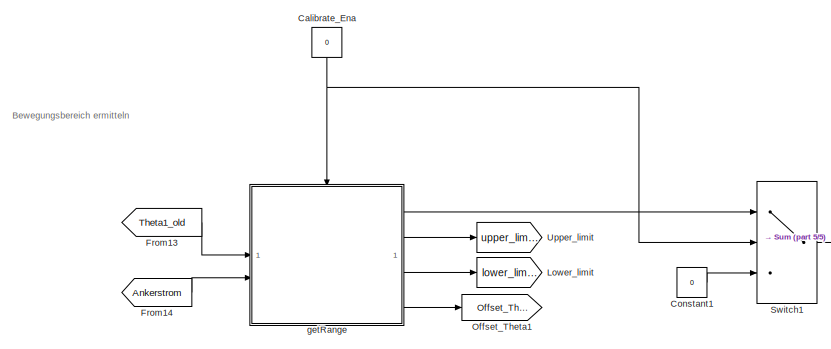
[diagram: root canvas - part 1/5, top center region]
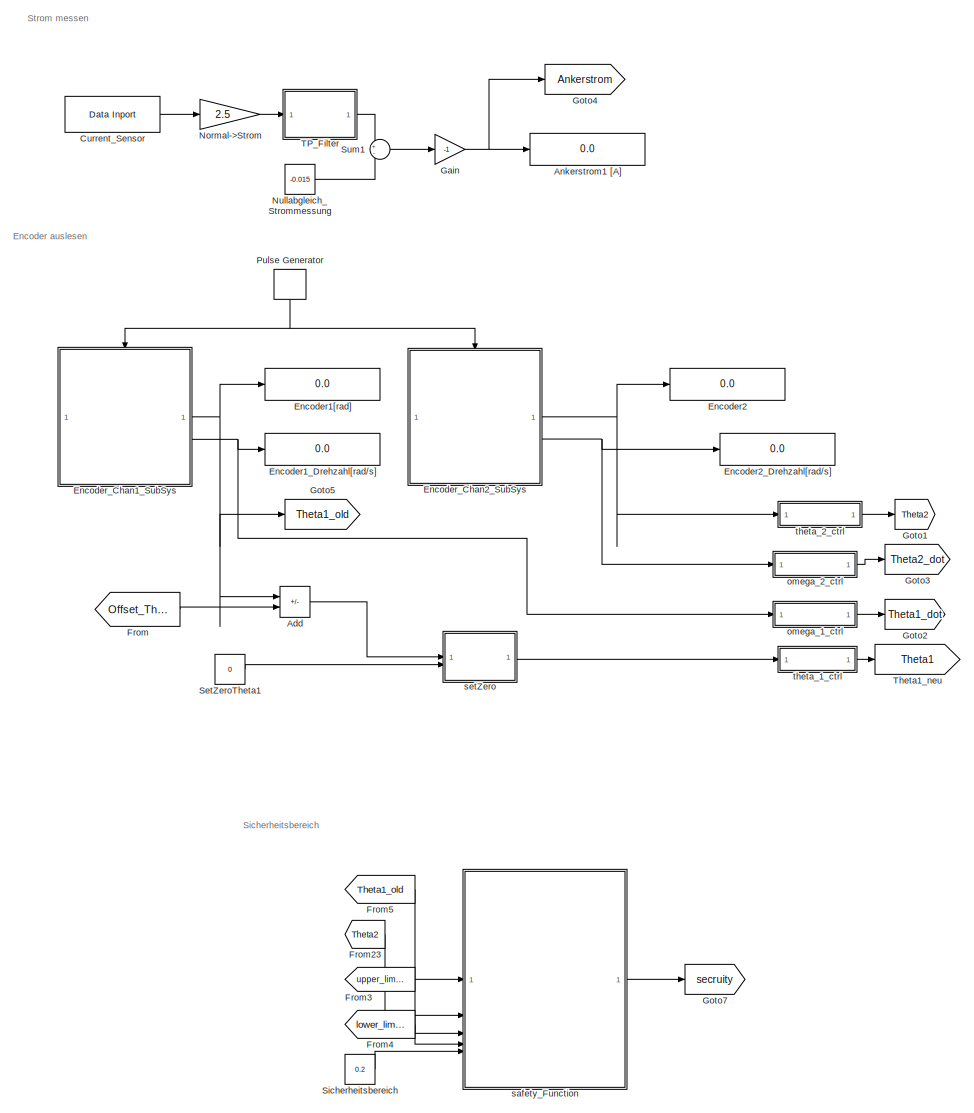
[diagram: root canvas - part 2/5, left side, full height]
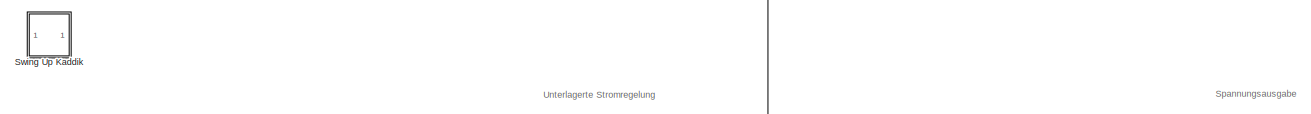
[diagram: root canvas - part 3/5, central region]
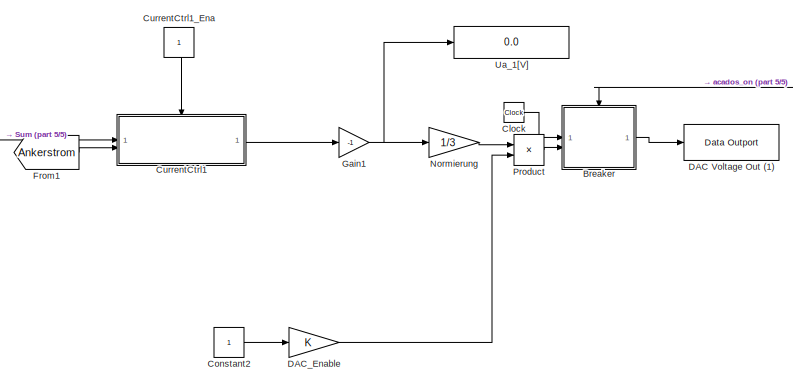
[diagram: root canvas - part 4/5, middle right region]
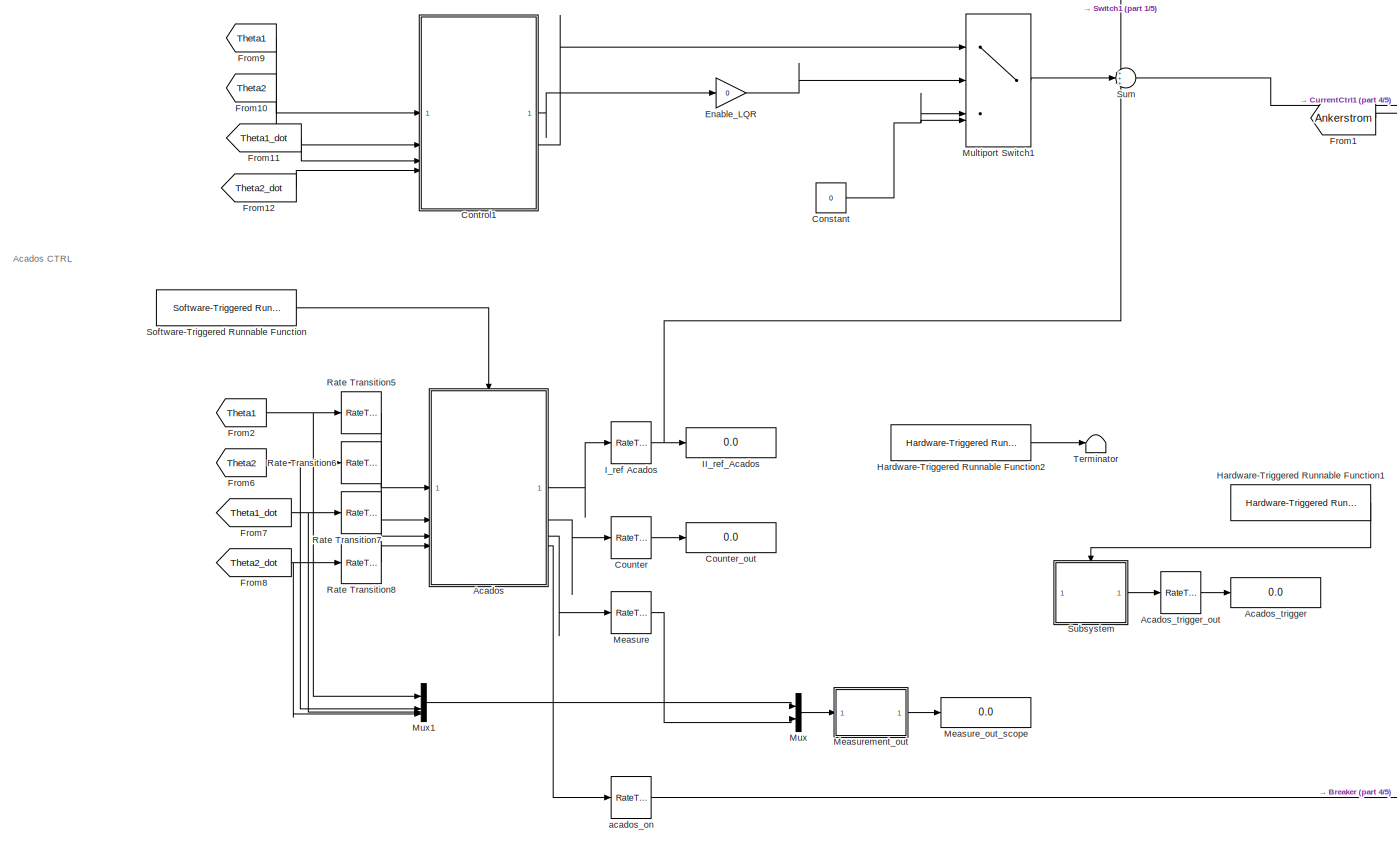
[diagram: root canvas - part 5/5, bottom center region]
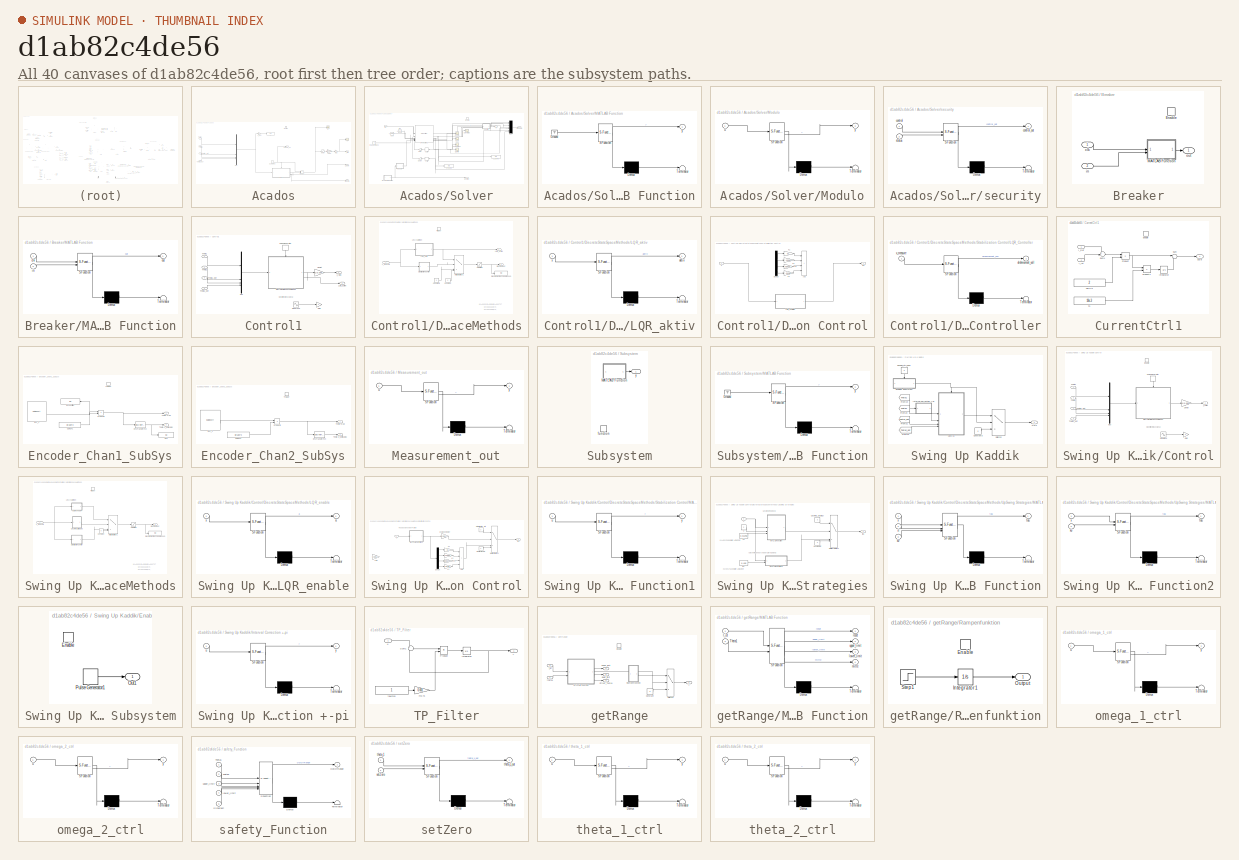
[diagram: thumbnail index - all 40 canvases of the model, root first then tree order]
MODEL slx_d1ab82c4de56
KIND model
CONFIG AbsTol = auto
CONFIG EnableMultiTasking = off
CONFIG FixedStep = 0.0001
CONFIG InitFcn = , if any(exist('rtifpga_mdlclblib', 'file') ~= 0), rtifpga_mdlclblib('Init', bdroot); end,\n, if any(exist('dsmpb_private', 'file') ~= 0), dsmpb_private('dsmpb_mdlclblib', 'Init', bdroot); end,\n
CONFIG MaxStep = auto
CONFIG MinStep = auto
CONFIG PostLoadFcn = if any(exist('dsrtsu_mdlpostloadfcn', 'file') ~= 0), dsrtsu_mdlpostloadfcn('Execute', bdroot); end
CONFIG RelTol = 1e-3
CONFIG SampleTimeConstraint = Unconstrained
CONFIG SolverName = ode4
CONFIG StartTime = 0.0
CONFIG StopTime = Inf
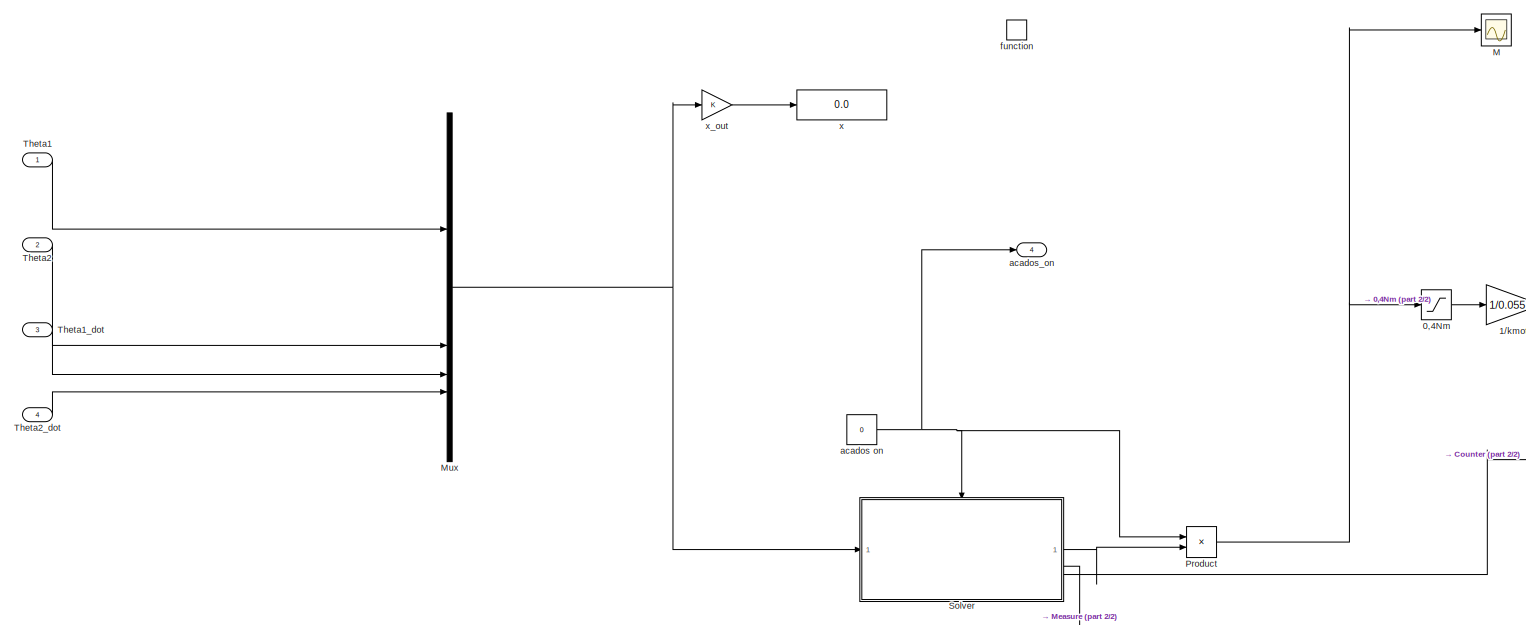
[diagram: Acados - part 1/2, most of the canvas]
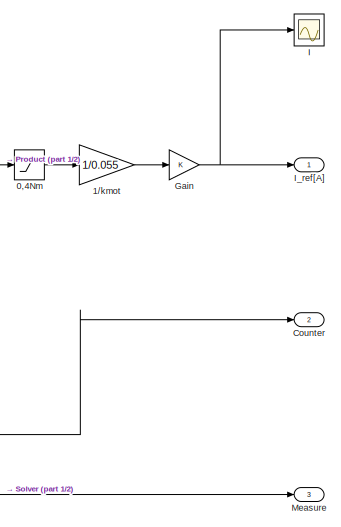
[diagram: Acados - part 2/2, right side, full height]
BLOCK [SubSystem] Acados
BLOCK [Saturate] Acados/0,4Nm
  LowerLimit = -0.4
  UpperLimit = 0.4
BLOCK [Gain] Acados/1//kmot
  Gain = 1/0.055
BLOCK [Outport] Acados/Counter
  InitialOutput = 0
  OutputWhenDisabled = reset
  Port = 2
  VectorParamsAs1DForOutWhenUnconnected = off
BLOCK [Gain] Acados/Gain
BLOCK [Scope] Acados/I
  Floating = off
  NumInputPorts = 1
  ScopeSpecificationString = Simulink.scopes.TimeScopeBlockCfg('CurrentConfiguration', extmgr.ConfigurationSet(extmgr.Configuration('Core','General UI',true),extmgr.Configuration('Core','Source UI',true),extmgr.Configuration('Sources','WiredSimulink',true,'DataLoggingVariableName','ScopeData2'),extmgr.Configuration('Visuals','Time Domain',true,'SerializedDisplays',{struct('MinYLimReal','-0.19996','MaxYLimReal','0.20853','YLab...<+1388ch>
BLOCK [Outport] Acados/I_ref[A]
  InitialOutput = 0
  OutputWhenDisabled = reset
  VectorParamsAs1DForOutWhenUnconnected = off
BLOCK [Scope] Acados/M
  Floating = off
  NumInputPorts = 1
  ScopeSpecificationString = Simulink.scopes.TimeScopeBlockCfg('CurrentConfiguration', extmgr.ConfigurationSet(extmgr.Configuration('Core','General UI',true),extmgr.Configuration('Core','Source UI',true),extmgr.Configuration('Sources','WiredSimulink',true,'DataLoggingVariableName','ScopeData1'),extmgr.Configuration('Visuals','Time Domain',true,'SerializedDisplays',{struct('MinYLimReal','-0.125','MaxYLimReal','1.125','YLabelRe...<+1347ch>
BLOCK [Outport] Acados/Measure
  InitialOutput = 0
  OutputWhenDisabled = reset
  Port = 3
  VectorParamsAs1DForOutWhenUnconnected = off
BLOCK [Mux] Acados/Mux
  DisplayOption = bar
BLOCK [Product] Acados/Product
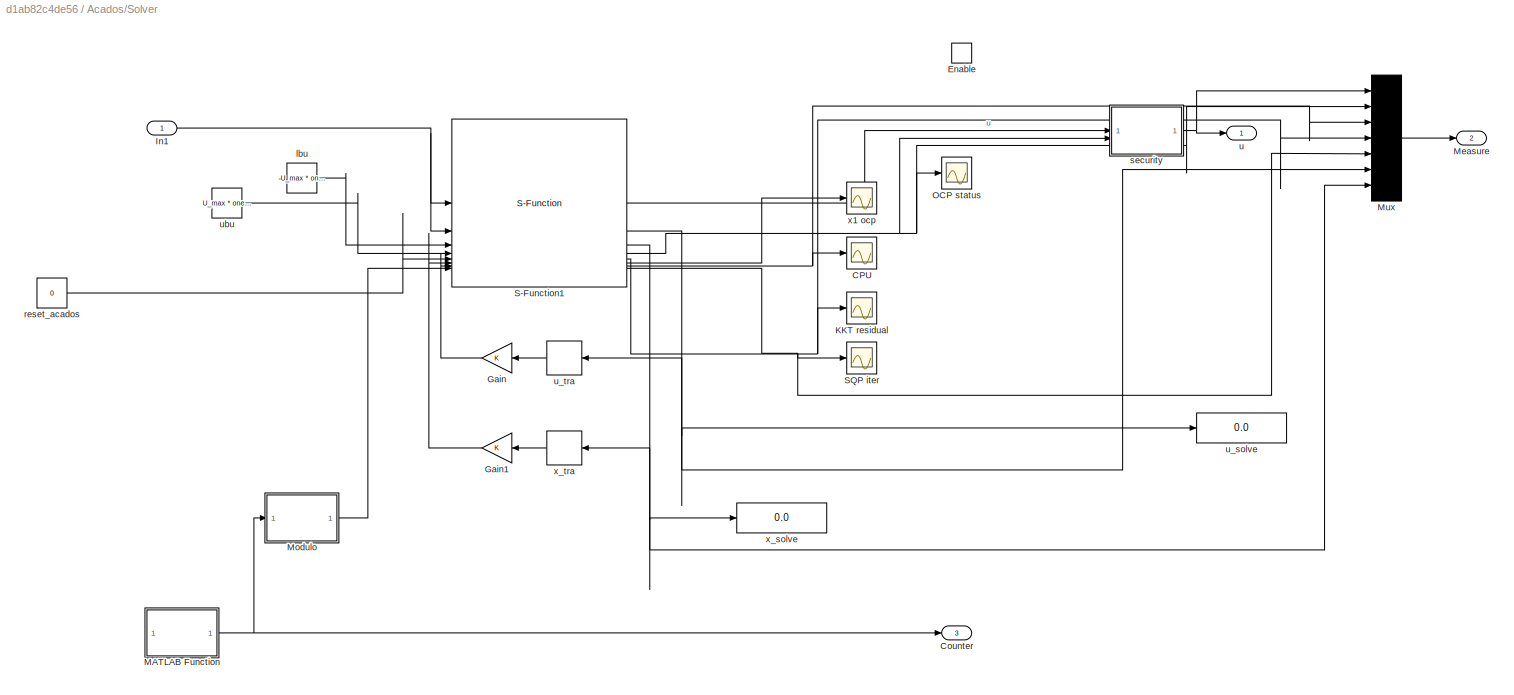
BLOCK [SubSystem] Acados/Solver
BLOCK [Scope] Acados/Solver/CPU
  Description = status
  Floating = off
  NumInputPorts = 1
  ScopeSpecificationString = Simulink.scopes.TimeScopeBlockCfg('CurrentConfiguration', extmgr.ConfigurationSet(extmgr.Configuration('Core','General UI',true,'FigureColor',[0.156862745098039 0.156862745098039 0.156862745098039]),extmgr.Configuration('Core','Source UI',true),extmgr.Configuration('Sources','WiredSimulink',true,'DataLoggingVariableName','ScopeData1','DataLoggingSaveFormat','StructureWithTime','DataLoggingDecimati...<+2713ch>
BLOCK [Outport] Acados/Solver/Counter
  Port = 3
BLOCK [EnablePort] Acados/Solver/Enable
BLOCK [Gain] Acados/Solver/Gain
BLOCK [Gain] Acados/Solver/Gain1
BLOCK [Inport] Acados/Solver/In1
BLOCK [Scope] Acados/Solver/KKT residual
  Description = status
  Floating = off
  NumInputPorts = 1
  ScopeSpecificationString = Simulink.scopes.TimeScopeBlockCfg('CurrentConfiguration', extmgr.ConfigurationSet(extmgr.Configuration('Core','General UI',true,'FigureColor',[0.156862745098039 0.156862745098039 0.156862745098039]),extmgr.Configuration('Core','Source UI',true),extmgr.Configuration('Sources','WiredSimulink',true,'DataLoggingVariableName','ScopeData2','DataLoggingSaveFormat','StructureWithTime','DataLoggingDecimati...<+2737ch>
BLOCK [SubSystem] Acados/Solver/MATLAB Function
  ErrorFcn = Stateflow.Translate.translate
  PermitHierarchicalResolution = ExplicitOnly
  SFBlockType = MATLAB Function
  TreatAsAtomicUnit = on
BLOCK [Demux] Acados/Solver/MATLAB Function/ Demux 
  Outputs = 1
BLOCK [Ground] Acados/Solver/MATLAB Function/ Ground 
BLOCK [S-Function] Acados/Solver/MATLAB Function/ SFunction 
  EnableBusSupport = on
  FunctionName = sf_sfun
  PortCounts = [1 2]
  SFcnIsStateOwnerBlock = off
  SFunctionDeploymentMode = off
  Tag = Stateflow S-Function 11
BLOCK [Terminator] Acados/Solver/MATLAB Function/ Terminator 
BLOCK [Outport] Acados/Solver/MATLAB Function/y
  VectorParamsAs1DForOutWhenUnconnected = off
BLOCK [Outport] Acados/Solver/Measure
  Port = 2
BLOCK [SubSystem] Acados/Solver/Modulo
  ErrorFcn = Stateflow.Translate.translate
  PermitHierarchicalResolution = ExplicitOnly
  SFBlockType = MATLAB Function
  TreatAsAtomicUnit = on
BLOCK [Demux] Acados/Solver/Modulo/ Demux 
  Outputs = 1
BLOCK [S-Function] Acados/Solver/Modulo/ SFunction 
  EnableBusSupport = on
  FunctionName = sf_sfun
  PortCounts = [1 2]
  SFcnIsStateOwnerBlock = off
  SFunctionDeploymentMode = off
  Tag = Stateflow S-Function 15
BLOCK [Terminator] Acados/Solver/Modulo/ Terminator 
BLOCK [Inport] Acados/Solver/Modulo/u
BLOCK [Outport] Acados/Solver/Modulo/y
  VectorParamsAs1DForOutWhenUnconnected = off
BLOCK [Mux] Acados/Solver/Mux
  DisplayOption = bar
  Inputs = 7
BLOCK [Scope] Acados/Solver/OCP status
  Description = status
  Floating = off
  NumInputPorts = 1
  ScopeSpecificationString = Simulink.scopes.TimeScopeBlockCfg('CurrentConfiguration', extmgr.ConfigurationSet(extmgr.Configuration('Core','General UI',true,'FigureColor',[0.156862745098039 0.156862745098039 0.156862745098039]),extmgr.Configuration('Core','Source UI',true),extmgr.Configuration('Sources','WiredSimulink',true,'DataLoggingVariableName','ScopeData3','DataLoggingSaveFormat','StructureWithTime','DataLoggingDecimati...<+2721ch>
BLOCK [S-Function] Acados/Solver/S-Function1
  EnableBusSupport = off
  FunctionName = acados_solver_sfunction_furuta
  SFcnIsStateOwnerBlock = off
  SFunctionDeploymentMode = off
BLOCK [Scope] Acados/Solver/SQP iter
  Description = status
  Floating = off
  NumInputPorts = 1
  ScopeSpecificationString = Simulink.scopes.TimeScopeBlockCfg('CurrentConfiguration', extmgr.ConfigurationSet(extmgr.Configuration('Core','General UI',true,'FigureColor',[0.156862745098039 0.156862745098039 0.156862745098039]),extmgr.Configuration('Core','Source UI',true),extmgr.Configuration('Sources','WiredSimulink',true,'DataLoggingVariableName','ScopeData4','DataLoggingSaveFormat','StructureWithTime','DataLoggingDecimati...<+2713ch>
BLOCK [Constant] Acados/Solver/lbu
  Value = -U_max * ones(N*nu, 1)
BLOCK [Constant] Acados/Solver/reset_acados
  Value = 0
BLOCK [SubSystem] Acados/Solver/security
  ErrorFcn = Stateflow.Translate.translate
  PermitHierarchicalResolution = ExplicitOnly
  SFBlockType = MATLAB Function
  TreatAsAtomicUnit = on
BLOCK [Demux] Acados/Solver/security/ Demux 
  Outputs = 1
BLOCK [S-Function] Acados/Solver/security/ SFunction 
  EnableBusSupport = on
  FunctionName = sf_sfun
  PortCounts = [2 2]
  SFcnIsStateOwnerBlock = off
  SFunctionDeploymentMode = off
  Tag = Stateflow S-Function 13
BLOCK [Terminator] Acados/Solver/security/ Terminator 
BLOCK [Inport] Acados/Solver/security/control
BLOCK [Outport] Acados/Solver/security/control_out
  VectorParamsAs1DForOutWhenUnconnected = off
BLOCK [Inport] Acados/Solver/security/status
  Port = 2
BLOCK [Outport] Acados/Solver/u
BLOCK [Display] Acados/Solver/u_solve
  Decimation = 1
BLOCK [Delay] Acados/Solver/u_tra
  DelayLength = 1
  InitialCondition = u_guess
  InputPortMap = u0
BLOCK [Constant] Acados/Solver/ubu
  Value = U_max * ones(N*nu, 1)
BLOCK [Scope] Acados/Solver/x1 ocp
  Description = status
  Floating = off
  NumInputPorts = 1
  ScopeSpecificationString = Simulink.scopes.TimeScopeBlockCfg('CurrentConfiguration', extmgr.ConfigurationSet(extmgr.Configuration('Core','General UI',true,'FigureColor',[0.156862745098039 0.156862745098039 0.156862745098039]),extmgr.Configuration('Core','Source UI',true),extmgr.Configuration('Sources','WiredSimulink',true,'DataLoggingSaveFormat','StructureWithTime','DataLoggingDecimation','1','DataLoggingDecimateData',true,...<+2750ch>
BLOCK [Display] Acados/Solver/x_solve
  Decimation = 1
BLOCK [Delay] Acados/Solver/x_tra
  DelayLength = 1
  InitialCondition = x_guess
  InputPortMap = u0
BLOCK [Inport] Acados/Theta1
BLOCK [Inport] Acados/Theta1_dot
  Port = 3
BLOCK [Inport] Acados/Theta2
  Port = 2
BLOCK [Inport] Acados/Theta2_dot
  Port = 4
BLOCK [Constant] Acados/acados on
  Value = 0
BLOCK [Outport] Acados/acados_on
  InitialOutput = 0
  OutputWhenDisabled = reset
  Port = 4
  VectorParamsAs1DForOutWhenUnconnected = off
BLOCK [TriggerPort] Acados/function
  StatesWhenEnabling = held
  TriggerType = function-call
  VariantControl = Variant
BLOCK [Display] Acados/x
  Decimation = 1
BLOCK [Gain] Acados/x_out
BLOCK [Display] Acados_trigger
  Decimation = 1
BLOCK [RateTransition] Acados_trigger_out
  Deterministic = off
BLOCK [Sum] Add
  IconShape = rectangular
  Inputs = +-
BLOCK [Display] Ankerstrom1 [A]
  Decimation = 1
BLOCK [SubSystem] Breaker
BLOCK [EnablePort] Breaker/Enable
BLOCK [SubSystem] Breaker/MATLAB Function
  ErrorFcn = Stateflow.Translate.translate
  PermitHierarchicalResolution = ExplicitOnly
  SFBlockType = MATLAB Function
  TreatAsAtomicUnit = on
BLOCK [Demux] Breaker/MATLAB Function/ Demux 
  Outputs = 1
BLOCK [S-Function] Breaker/MATLAB Function/ SFunction 
  EnableBusSupport = on
  FunctionName = sf_sfun
  PortCounts = [2 2]
  SFcnIsStateOwnerBlock = off
  SFunctionDeploymentMode = off
  Tag = Stateflow S-Function 17
BLOCK [Terminator] Breaker/MATLAB Function/ Terminator 
BLOCK [Inport] Breaker/MATLAB Function/clk
BLOCK [Inport] Breaker/MATLAB Function/in
  Port = 2
BLOCK [Outport] Breaker/MATLAB Function/out
  VectorParamsAs1DForOutWhenUnconnected = off
BLOCK [Inport] Breaker/clk
BLOCK [Inport] Breaker/in
  Port = 2
BLOCK [Outport] Breaker/out
BLOCK [Constant] Calibrate_Ena
  NameLocation = left
  Value = 0
BLOCK [Clock] Clock
BLOCK [Constant] Constant
  Value = 0
BLOCK [Constant] Constant1
  Value = 0
BLOCK [Constant] Constant2
BLOCK [SubSystem] Control1
BLOCK [Gain] Control1/1//kmot
  Gain = 1/0.055
BLOCK [SubSystem] Control1/DiscreteStateSpaceMethods
BLOCK [Constant] Control1/DiscreteStateSpaceMethods/Constant
  Value = 0
BLOCK [Constant] Control1/DiscreteStateSpaceMethods/Constant1
  Value = 0
BLOCK [Outport] Control1/DiscreteStateSpaceMethods/Drehmoment
  VectorParamsAs1DForOutWhenUnconnected = off
BLOCK [Display] Control1/DiscreteStateSpaceMethods/Drehmoment nach begrenzen
  Decimation = 1
BLOCK [Outport] Control1/DiscreteStateSpaceMethods/LQR_active
  Port = 2
  VectorParamsAs1DForOutWhenUnconnected = off
BLOCK [SubSystem] Control1/DiscreteStateSpaceMethods/LQR_aktiv
  ErrorFcn = Stateflow.Translate.translate
  PermitHierarchicalResolution = ExplicitOnly
  SFBlockType = MATLAB Function
  TreatAsAtomicUnit = on
BLOCK [Demux] Control1/DiscreteStateSpaceMethods/LQR_aktiv/ Demux 
  Outputs = 1
BLOCK [S-Function] Control1/DiscreteStateSpaceMethods/LQR_aktiv/ SFunction 
  EnableBusSupport = on
  FunctionName = sf_sfun
  PortCounts = [1 2]
  SFcnIsStateOwnerBlock = off
  SFunctionDeploymentMode = off
  Tag = Stateflow S-Function 10
BLOCK [Terminator] Control1/DiscreteStateSpaceMethods/LQR_aktiv/ Terminator 
BLOCK [Outport] Control1/DiscreteStateSpaceMethods/LQR_aktiv/aktiv
BLOCK [Inport] Control1/DiscreteStateSpaceMethods/LQR_aktiv/x
BLOCK [MultiPortSwitch] Control1/DiscreteStateSpaceMethods/Multiport Switch1
  DataPortForDefault = Additional data port
  InputSameDT = off
  Inputs = 2
  SaturateOnIntegerOverflow = off
BLOCK [Saturate] Control1/DiscreteStateSpaceMethods/Saturation
  LowerLimit = -0.4
  UpperLimit = 0.4
BLOCK [SubSystem] Control1/DiscreteStateSpaceMethods/Stabilization Control
BLOCK [Sum] Control1/DiscreteStateSpaceMethods/Stabilization Control/Add
  IconShape = rectangular
  Inputs = ++++
BLOCK [Demux] Control1/DiscreteStateSpaceMethods/Stabilization Control/Demux
BLOCK [SubSystem] Control1/DiscreteStateSpaceMethods/Stabilization Control/LQR_Controller
  ErrorFcn = Stateflow.Translate.translate
  PermitHierarchicalResolution = ExplicitOnly
  SFBlockType = MATLAB Function
  TreatAsAtomicUnit = on
BLOCK [Demux] Control1/DiscreteStateSpaceMethods/Stabilization Control/LQR_Controller/ Demux 
  Outputs = 1
BLOCK [S-Function] Control1/DiscreteStateSpaceMethods/Stabilization Control/LQR_Controller/ SFunction 
  EnableBusSupport = on
  FunctionName = sf_sfun
  PortCounts = [1 2]
  SFcnIsStateOwnerBlock = off
  SFunctionDeploymentMode = off
  Tag = Stateflow S-Function 9
BLOCK [Terminator] Control1/DiscreteStateSpaceMethods/Stabilization Control/LQR_Controller/ Terminator 
BLOCK [Outport] Control1/DiscreteStateSpaceMethods/Stabilization Control/LQR_Controller/drehmoment_soll
BLOCK [Inport] Control1/DiscreteStateSpaceMethods/Stabilization Control/LQR_Controller/x_measure
BLOCK [Gain] Control1/DiscreteStateSpaceMethods/Stabilization Control/k1
  Gain = 0.1
BLOCK [Gain] Control1/DiscreteStateSpaceMethods/Stabilization Control/k2
  Gain = -1.3582
BLOCK [Gain] Control1/DiscreteStateSpaceMethods/Stabilization Control/k3
  Gain = 0.0544
BLOCK [Gain] Control1/DiscreteStateSpaceMethods/Stabilization Control/k4
  Gain = -0.138
BLOCK [Outport] Control1/DiscreteStateSpaceMethods/Stabilization Control/tau
BLOCK [Inport] Control1/DiscreteStateSpaceMethods/Stabilization Control/u
BLOCK [TriggerPort] Control1/DiscreteStateSpaceMethods/Trigger
  PortDimensions = 1
  StatesWhenEnabling = held
  VariantControl = (inherit)
BLOCK [Inport] Control1/DiscreteStateSpaceMethods/x_measure
  NameLocation = top
BLOCK [Gain] Control1/Gain
  Commented = on
  Gain = -1
BLOCK [Outport] Control1/I_ref[A]
  InitialOutput = 0
  OutputWhenDisabled = reset
  VectorParamsAs1DForOutWhenUnconnected = off
BLOCK [Outport] Control1/LQR_active
  InitialOutput = 0
  OutputWhenDisabled = reset
  Port = 2
  VectorParamsAs1DForOutWhenUnconnected = off
BLOCK [Mux] Control1/Mux
  DisplayOption = bar
BLOCK [DiscretePulseGenerator] Control1/Pulse Generator
  NameLocation = left
  Period = 0.001
  PulseType = Time based
  PulseWidth = 50
BLOCK [Sin] Control1/Sine Wave
  Amplitude = 1.22
  Bias = 0.3
  Commented = on
  Frequency = 0.8
  SampleTime = 0
BLOCK [Inport] Control1/Theta1
BLOCK [Inport] Control1/Theta1_dot
  Port = 3
BLOCK [Inport] Control1/Theta2
  Port = 2
BLOCK [Inport] Control1/Theta2_dot
  Port = 4
BLOCK [RateTransition] Counter
  Deterministic = off
BLOCK [Display] Counter_out
  Decimation = 1
BLOCK [SubSystem] CurrentCtrl1
BLOCK [EnablePort] CurrentCtrl1/Enable
  StatesWhenEnabling = reset
BLOCK [Inport] CurrentCtrl1/I_Ist
  Port = 2
BLOCK [Inport] CurrentCtrl1/I_Ref
BLOCK [Integrator] CurrentCtrl1/Integrator
  LimitOutput = on
  LowerSaturationLimit = -10
  UpperSaturationLimit = 10
BLOCK [Constant] CurrentCtrl1/Kp[V//A]
  Value = 2
BLOCK [Product] CurrentCtrl1/Product
  RndMeth = Zero
BLOCK [Product] CurrentCtrl1/Product1
  Inputs = */
  RndMeth = Zero
BLOCK [Sum] CurrentCtrl1/Sum
  Inputs = |++
BLOCK [Sum] CurrentCtrl1/Sum1
  Inputs = +-
BLOCK [Constant] CurrentCtrl1/Tn
  Value = 10e-3
BLOCK [Outport] CurrentCtrl1/ua[V]
  InitialOutput = 0
  OutputWhenDisabled = reset
  VectorParamsAs1DForOutWhenUnconnected = off
BLOCK [Constant] CurrentCtrl1_Ena
  NameLocation = left
BLOCK [Reference] Current_Sensor  REF=dsmpblib/Data Inport
  Diagnostics = AllowInheritedTsInSrc
  Priority = 10000
  SourceBlock = dsmpblib/Data Inport
  SourceProductName = dSPACE Model Interface Blockset
  SourceType = DataInportBlock
  UserDataPersistent = on
BLOCK [Reference] DAC Voltage Out (1)  REF=dsmpblib/Data Outport
  Diagnostics = AllowInheritedTsInSrc
  Priority = -10000
  SourceBlock = dsmpblib/Data Outport
  SourceProductName = dSPACE Model Interface Blockset
  SourceType = DataOutportBlock
  UserDataPersistent = on
BLOCK [Gain] DAC_Enable
BLOCK [Gain] Enable_LQR
  Gain = 0
BLOCK [Display] Encoder1[rad]
  Decimation = 1
BLOCK [Display] Encoder1_Drehzahl[rad//s]
  Decimation = 1
BLOCK [Display] Encoder2
  Decimation = 1
BLOCK [Display] Encoder2_Drehzahl[rad//s]
  Decimation = 1
BLOCK [SubSystem] Encoder_Chan1_SubSys
BLOCK [Constant] Encoder_Chan1_SubSys/CONST1
  Value = pi/180*2
BLOCK [Display] Encoder_Chan1_SubSys/DT1
  Decimation = 1
BLOCK [DiscreteTransferFcn] Encoder_Chan1_SubSys/DT1 Transfer Fcn
  Denominator = [1, -0.9512]
  InputPortMap = u0
  Numerator = [50, -50]
BLOCK [Display] Encoder_Chan1_SubSys/Enc position
  Decimation = 1
  NameLocation = top
BLOCK [Reference] Encoder_Chan1_SubSys/Enc_1  REF=dsmpblib/Data Inport
  Diagnostics = AllowInheritedTsInSrc
  Priority = 10000
  SourceBlock = dsmpblib/Data Inport
  SourceProductName = dSPACE Model Interface Blockset
  SourceType = DataInportBlock
  UserDataPersistent = on
BLOCK [Product] Encoder_Chan1_SubSys/Product3
  RndMeth = Zero
BLOCK [Outport] Encoder_Chan1_SubSys/Theta-1 rad
  VectorParamsAs1DForOutWhenUnconnected = off
BLOCK [Outport] Encoder_Chan1_SubSys/Theta-1_dot[rad//s]
  Port = 2
  VectorParamsAs1DForOutWhenUnconnected = off
BLOCK [TriggerPort] Encoder_Chan1_SubSys/Trigger
  StatesWhenEnabling = held
  VariantControl = (inherit)
BLOCK [SubSystem] Encoder_Chan2_SubSys
BLOCK [Constant] Encoder_Chan2_SubSys/CONST1
  Value = pi/180*2
BLOCK [DiscreteTransferFcn] Encoder_Chan2_SubSys/DT1 Transfer Fcn
  Denominator = [1, -0.9512]
  InputPortMap = u0
  Numerator = [50, -50]
BLOCK [Reference] Encoder_Chan2_SubSys/Enc_2  REF=dsmpblib/Data Inport
  Diagnostics = AllowInheritedTsInSrc
  Priority = 10000
  SourceBlock = dsmpblib/Data Inport
  SourceProductName = dSPACE Model Interface Blockset
  SourceType = DataInportBlock
  UserDataPersistent = on
BLOCK [Product] Encoder_Chan2_SubSys/Product3
  RndMeth = Zero
BLOCK [Outport] Encoder_Chan2_SubSys/Theta-2 rad
  VectorParamsAs1DForOutWhenUnconnected = off
BLOCK [Outport] Encoder_Chan2_SubSys/Theta-2_dot[rad//s]
  Port = 2
  VectorParamsAs1DForOutWhenUnconnected = off
BLOCK [TriggerPort] Encoder_Chan2_SubSys/Trigger
  StatesWhenEnabling = held
  VariantControl = (inherit)
BLOCK [From] From
  GotoTag = Offset_Theta1
BLOCK [From] From1
  GotoTag = Ankerstrom
BLOCK [From] From10
  GotoTag = Theta2
BLOCK [From] From11
  GotoTag = Theta1_dot
BLOCK [From] From12
  GotoTag = Theta2_dot
BLOCK [From] From13
  GotoTag = Theta1_old
BLOCK [From] From14
  GotoTag = Ankerstrom
BLOCK [From] From2
  GotoTag = Theta1
BLOCK [From] From23
  GotoTag = Theta2
BLOCK [From] From3
  GotoTag = upper_limit
BLOCK [From] From4
  GotoTag = lower_limit
BLOCK [From] From5
  GotoTag = Theta1_old
BLOCK [From] From6
  GotoTag = Theta2
BLOCK [From] From7
  GotoTag = Theta1_dot
BLOCK [From] From8
  GotoTag = Theta2_dot
BLOCK [From] From9
  GotoTag = Theta1
BLOCK [Gain] Gain
  Gain = -1
BLOCK [Gain] Gain1
  Gain = -1
BLOCK [Goto] Goto1
  GotoTag = Theta2
BLOCK [Goto] Goto2
  GotoTag = Theta1_dot
BLOCK [Goto] Goto3
  GotoTag = Theta2_dot
BLOCK [Goto] Goto4
  GotoTag = Ankerstrom
BLOCK [Goto] Goto5
  GotoTag = Theta1_old
BLOCK [Goto] Goto7
  GotoTag = secruity
BLOCK [Reference] Hardware-Triggered Runnable Function1  REF=dsmpblib/Hardware-Triggered Runnable Function
  Diagnostics = AllowInheritedTsInSrc
  SourceBlock = dsmpblib/Hardware-Triggered Runnable Function
  SourceProductName = dSPACE Model Interface Blockset
  SourceType = RunnableFunctionBlock
  UserDataPersistent = on
BLOCK [Reference] Hardware-Triggered Runnable Function2  REF=dsmpblib/Hardware-Triggered Runnable Function
  Diagnostics = AllowInheritedTsInSrc
  SourceBlock = dsmpblib/Hardware-Triggered Runnable Function
  SourceProductName = dSPACE Model Interface Blockset
  SourceType = RunnableFunctionBlock
  UserDataPersistent = on
BLOCK [Display] II_ref_Acados
  Decimation = 1
BLOCK [RateTransition] I_ref Acados
  Deterministic = off
BLOCK [Goto] Lower_limit
  GotoTag = lower_limit
  NameLocation = right
BLOCK [RateTransition] Measure
  Deterministic = off
BLOCK [Display] Measure_out_scope
  Decimation = 1
BLOCK [SubSystem] Measurement_out
  ErrorFcn = Stateflow.Translate.translate
  PermitHierarchicalResolution = ExplicitOnly
  SFBlockType = MATLAB Function
  TreatAsAtomicUnit = on
BLOCK [Demux] Measurement_out/ Demux 
  Outputs = 1
BLOCK [S-Function] Measurement_out/ SFunction 
  EnableBusSupport = on
  FunctionName = sf_sfun
  PortCounts = [1 2]
  SFcnIsStateOwnerBlock = off
  SFunctionDeploymentMode = off
  Tag = Stateflow S-Function 16
BLOCK [Terminator] Measurement_out/ Terminator 
BLOCK [Inport] Measurement_out/u
BLOCK [Outport] Measurement_out/y
  VectorParamsAs1DForOutWhenUnconnected = off
BLOCK [MultiPortSwitch] Multiport Switch1
  DataPortForDefault = Additional data port
  InputSameDT = off
  Inputs = 2
  SaturateOnIntegerOverflow = off
BLOCK [Mux] Mux
  DisplayOption = bar
  Inputs = 2
BLOCK [Mux] Mux1
  DisplayOption = bar
BLOCK [Gain] Normal->Strom
  Gain = 2.5
BLOCK [Gain] Normierung
  Gain = 1/3
BLOCK [Constant] Nullabgleich_Strommessung
  Value = -0.015
BLOCK [Goto] Offset_Theta1
  GotoTag = Offset_Theta1
  NameLocation = right
BLOCK [Product] Product
BLOCK [DiscretePulseGenerator] Pulse Generator
  NameLocation = left
  Period = 0.001
  PulseType = Time based
  PulseWidth = 50
BLOCK [RateTransition] Rate Transition5
  Deterministic = off
BLOCK [RateTransition] Rate Transition6
  Deterministic = off
BLOCK [RateTransition] Rate Transition7
  Deterministic = off
BLOCK [RateTransition] Rate Transition8
  Deterministic = off
BLOCK [Constant] SetZeroTheta1
  Value = 0
BLOCK [Constant] Sicherheitsbereich
  Value = 0.2
BLOCK [Reference] Software-Triggered Runnable Function  REF=dsmpblib/Software-Triggered Runnable Function
  SourceBlock = dsmpblib/Software-Triggered Runnable Function
  SourceProductName = dSPACE Model Interface Blockset
  SourceType = SoftwareTriggeredRunnableFunctionBlock
  UserDataPersistent = on
BLOCK [SubSystem] Subsystem
BLOCK [SubSystem] Subsystem/MATLAB Function
  ErrorFcn = Stateflow.Translate.translate
  PermitHierarchicalResolution = ExplicitOnly
  SFBlockType = MATLAB Function
  TreatAsAtomicUnit = on
BLOCK [Demux] Subsystem/MATLAB Function/ Demux 
  Outputs = 1
BLOCK [Ground] Subsystem/MATLAB Function/ Ground 
BLOCK [S-Function] Subsystem/MATLAB Function/ SFunction 
  EnableBusSupport = on
  FunctionName = sf_sfun
  PortCounts = [1 2]
  SFcnIsStateOwnerBlock = off
  SFunctionDeploymentMode = off
  Tag = Stateflow S-Function 14
BLOCK [Terminator] Subsystem/MATLAB Function/ Terminator 
BLOCK [Outport] Subsystem/MATLAB Function/y
  VectorParamsAs1DForOutWhenUnconnected = off
BLOCK [TriggerPort] Subsystem/function
  StatesWhenEnabling = held
  TriggerType = function-call
  VariantControl = Variant
BLOCK [Outport] Subsystem/y
BLOCK [Sum] Sum
  Inputs = +++
BLOCK [Sum] Sum1
  Inputs = +-
BLOCK [SubSystem] Swing Up Kaddik
BLOCK [Constant] Swing Up Kaddik/Constant3
  Value = 0
BLOCK [SubSystem] Swing Up Kaddik/Control
BLOCK [Gain] Swing Up Kaddik/Control/1//kmot
  Gain = 1/0.055
BLOCK [SubSystem] Swing Up Kaddik/Control/DiscreteStateSpaceMethods
BLOCK [Constant] Swing Up Kaddik/Control/DiscreteStateSpaceMethods/Constant
  Value = 0
BLOCK [Outport] Swing Up Kaddik/Control/DiscreteStateSpaceMethods/Drehmoment
  VectorParamsAs1DForOutWhenUnconnected = off
BLOCK [Display] Swing Up Kaddik/Control/DiscreteStateSpaceMethods/Drehmoment nach begrenzen
  Decimation = 1
BLOCK [SubSystem] Swing Up Kaddik/Control/DiscreteStateSpaceMethods/LQR_enable
  ErrorFcn = Stateflow.Translate.translate
  PermitHierarchicalResolution = ExplicitOnly
  SFBlockType = MATLAB Function
  TreatAsAtomicUnit = on
BLOCK [Demux] Swing Up Kaddik/Control/DiscreteStateSpaceMethods/LQR_enable/ Demux 
  Outputs = 1
BLOCK [S-Function] Swing Up Kaddik/Control/DiscreteStateSpaceMethods/LQR_enable/ SFunction 
  EnableBusSupport = on
  FunctionName = sf_sfun
  PortCounts = [1 2]
  SFcnIsStateOwnerBlock = off
  SFunctionDeploymentMode = off
  Tag = Stateflow S-Function 58
BLOCK [Terminator] Swing Up Kaddik/Control/DiscreteStateSpaceMethods/LQR_enable/ Terminator 
BLOCK [Outport] Swing Up Kaddik/Control/DiscreteStateSpaceMethods/LQR_enable/a
BLOCK [Inport] Swing Up Kaddik/Control/DiscreteStateSpaceMethods/LQR_enable/x
BLOCK [MultiPortSwitch] Swing Up Kaddik/Control/DiscreteStateSpaceMethods/Multiport Switch1
  DataPortForDefault = Additional data port
  InputSameDT = off
  Inputs = 2
  SaturateOnIntegerOverflow = off
BLOCK [Saturate] Swing Up Kaddik/Control/DiscreteStateSpaceMethods/Saturation
  LowerLimit = -0.4
  UpperLimit = 0.4
BLOCK [SubSystem] Swing Up Kaddik/Control/DiscreteStateSpaceMethods/Stabilization Control
BLOCK [Sum] Swing Up Kaddik/Control/DiscreteStateSpaceMethods/Stabilization Control/Add
  IconShape = rectangular
  Inputs = ++++
BLOCK [Demux] Swing Up Kaddik/Control/DiscreteStateSpaceMethods/Stabilization Control/Demux
BLOCK [Gain] Swing Up Kaddik/Control/DiscreteStateSpaceMethods/Stabilization Control/LQR
  Commented = on
  Gain = -[-0.0577    1.0578   -0.0367    0.1049]
  Multiplication = Matrix(K*u) (u vector)
BLOCK [SubSystem] Swing Up Kaddik/Control/DiscreteStateSpaceMethods/Stabilization Control/MATLAB Function1
  ErrorFcn = Stateflow.Translate.translate
  PermitHierarchicalResolution = ExplicitOnly
  SFBlockType = MATLAB Function
  TreatAsAtomicUnit = on
BLOCK [Demux] Swing Up Kaddik/Control/DiscreteStateSpaceMethods/Stabilization Control/MATLAB Function1/ Demux 
  Outputs = 1
BLOCK [S-Function] Swing Up Kaddik/Control/DiscreteStateSpaceMethods/Stabilization Control/MATLAB Function1/ SFunction 
  EnableBusSupport = on
  FunctionName = sf_sfun
  PortCounts = [1 2]
  SFcnIsStateOwnerBlock = off
  SFunctionDeploymentMode = off
  Tag = Stateflow S-Function 57
BLOCK [Terminator] Swing Up Kaddik/Control/DiscreteStateSpaceMethods/Stabilization Control/MATLAB Function1/ Terminator 
BLOCK [Inport] Swing Up Kaddik/Control/DiscreteStateSpaceMethods/Stabilization Control/MATLAB Function1/u
BLOCK [Outport] Swing Up Kaddik/Control/DiscreteStateSpaceMethods/Stabilization Control/MATLAB Function1/y
BLOCK [MultiPortSwitch] Swing Up Kaddik/Control/DiscreteStateSpaceMethods/Stabilization Control/Multiport Switch1
  DataPortForDefault = Additional data port
  InputSameDT = off
  Inputs = 2
  SaturateOnIntegerOverflow = off
BLOCK [Constant] Swing Up Kaddik/Control/DiscreteStateSpaceMethods/Stabilization Control/StabilizationInit
  Value = 0
BLOCK [Constant] Swing Up Kaddik/Control/DiscreteStateSpaceMethods/Stabilization Control/Stabilization_Ctrl
  NameLocation = top
  Value = 3
BLOCK [Gain] Swing Up Kaddik/Control/DiscreteStateSpaceMethods/Stabilization Control/Zustandsregler
  Gain = -[-0.0291, 0.7090, -0.0213, 0.0666]
  Multiplication = Matrix(K*u) (u vector)
BLOCK [Gain] Swing Up Kaddik/Control/DiscreteStateSpaceMethods/Stabilization Control/k1
  Gain = 0.1
BLOCK [Gain] Swing Up Kaddik/Control/DiscreteStateSpaceMethods/Stabilization Control/k2
  Gain = -1.3582
BLOCK [Gain] Swing Up Kaddik/Control/DiscreteStateSpaceMethods/Stabilization Control/k3
  Gain = 0.0544
BLOCK [Gain] Swing Up Kaddik/Control/DiscreteStateSpaceMethods/Stabilization Control/k4
  Gain = -0.138
BLOCK [Outport] Swing Up Kaddik/Control/DiscreteStateSpaceMethods/Stabilization Control/tau
BLOCK [Inport] Swing Up Kaddik/Control/DiscreteStateSpaceMethods/Stabilization Control/u
BLOCK [TriggerPort] Swing Up Kaddik/Control/DiscreteStateSpaceMethods/Trigger
  PortDimensions = 1
  StatesWhenEnabling = held
  VariantControl = (inherit)
BLOCK [SubSystem] Swing Up Kaddik/Control/DiscreteStateSpaceMethods/UpSwing Strategies
BLOCK [Constant] Swing Up Kaddik/Control/DiscreteStateSpaceMethods/UpSwing Strategies/KV
  NameLocation = left
  Value = 0.405
BLOCK [SubSystem] Swing Up Kaddik/Control/DiscreteStateSpaceMethods/UpSwing Strategies/MATLAB Function
  ErrorFcn = Stateflow.Translate.translate
  PermitHierarchicalResolution = ExplicitOnly
  SFBlockType = MATLAB Function
  TreatAsAtomicUnit = on
BLOCK [Demux] Swing Up Kaddik/Control/DiscreteStateSpaceMethods/UpSwing Strategies/MATLAB Function/ Demux 
  Outputs = 1
BLOCK [S-Function] Swing Up Kaddik/Control/DiscreteStateSpaceMethods/UpSwing Strategies/MATLAB Function/ SFunction 
  EnableBusSupport = on
  FunctionName = sf_sfun
  PortCounts = [3 2]
  SFcnIsStateOwnerBlock = off
  SFunctionDeploymentMode = off
  Tag = Stateflow S-Function 3
BLOCK [Terminator] Swing Up Kaddik/Control/DiscreteStateSpaceMethods/UpSwing Strategies/MATLAB Function/ Terminator 
BLOCK [Inport] Swing Up Kaddik/Control/DiscreteStateSpaceMethods/UpSwing Strategies/MATLAB Function/kv
  Port = 3
BLOCK [Inport] Swing Up Kaddik/Control/DiscreteStateSpaceMethods/UpSwing Strategies/MATLAB Function/n
  Port = 2
BLOCK [Outport] Swing Up Kaddik/Control/DiscreteStateSpaceMethods/UpSwing Strategies/MATLAB Function/tau
BLOCK [Inport] Swing Up Kaddik/Control/DiscreteStateSpaceMethods/UpSwing Strategies/MATLAB Function/x
BLOCK [SubSystem] Swing Up Kaddik/Control/DiscreteStateSpaceMethods/UpSwing Strategies/MATLAB Function2
  ErrorFcn = Stateflow.Translate.translate
  PermitHierarchicalResolution = ExplicitOnly
  SFBlockType = MATLAB Function
  TreatAsAtomicUnit = on
BLOCK [Demux] Swing Up Kaddik/Control/DiscreteStateSpaceMethods/UpSwing Strategies/MATLAB Function2/ Demux 
  Outputs = 1
BLOCK [S-Function] Swing Up Kaddik/Control/DiscreteStateSpaceMethods/UpSwing Strategies/MATLAB Function2/ SFunction 
  EnableBusSupport = on
  FunctionName = sf_sfun
  PortCounts = [2 2]
  SFcnIsStateOwnerBlock = off
  SFunctionDeploymentMode = off
  Tag = Stateflow S-Function 60
BLOCK [Terminator] Swing Up Kaddik/Control/DiscreteStateSpaceMethods/UpSwing Strategies/MATLAB Function2/ Terminator 
BLOCK [Inport] Swing Up Kaddik/Control/DiscreteStateSpaceMethods/UpSwing Strategies/MATLAB Function2/kv
  Port = 2
BLOCK [Outport] Swing Up Kaddik/Control/DiscreteStateSpaceMethods/UpSwing Strategies/MATLAB Function2/tau
BLOCK [Inport] Swing Up Kaddik/Control/DiscreteStateSpaceMethods/UpSwing Strategies/MATLAB Function2/x
BLOCK [MultiPortSwitch] Swing Up Kaddik/Control/DiscreteStateSpaceMethods/UpSwing Strategies/Multiport Switch1
  DataPortForDefault = Additional data port
  InputSameDT = off
  Inputs = 2
  SaturateOnIntegerOverflow = off
BLOCK [Constant] Swing Up Kaddik/Control/DiscreteStateSpaceMethods/UpSwing Strategies/UpswingInit
  Value = 0
BLOCK [Constant] Swing Up Kaddik/Control/DiscreteStateSpaceMethods/UpSwing Strategies/Upswing_Strategy
  NameLocation = top
  Value = 3
BLOCK [Constant] Swing Up Kaddik/Control/DiscreteStateSpaceMethods/UpSwing Strategies/kv
  NameLocation = left
  Value = 0.01298
BLOCK [Constant] Swing Up Kaddik/Control/DiscreteStateSpaceMethods/UpSwing Strategies/n
  NameLocation = left
  Value = 2
BLOCK [Outport] Swing Up Kaddik/Control/DiscreteStateSpaceMethods/UpSwing Strategies/tau
BLOCK [Inport] Swing Up Kaddik/Control/DiscreteStateSpaceMethods/UpSwing Strategies/x
  NameLocation = left
BLOCK [Inport] Swing Up Kaddik/Control/DiscreteStateSpaceMethods/x_measure
  NameLocation = top
BLOCK [EnablePort] Swing Up Kaddik/Control/Enable
  StatesWhenEnabling = reset
BLOCK [Gain] Swing Up Kaddik/Control/Gain
  Commented = on
  Gain = -1
BLOCK [Outport] Swing Up Kaddik/Control/I_ref[A]
  InitialOutput = 0
  OutputWhenDisabled = reset
  VectorParamsAs1DForOutWhenUnconnected = off
BLOCK [Mux] Swing Up Kaddik/Control/Mux
  DisplayOption = bar
BLOCK [DiscretePulseGenerator] Swing Up Kaddik/Control/Pulse Generator
  NameLocation = left
  Period = 0.001
  PulseType = Time based
  PulseWidth = 50
BLOCK [Sin] Swing Up Kaddik/Control/Sine Wave
  Amplitude = 1.22
  Bias = 0.3
  Commented = on
  Frequency = 0.8
  SampleTime = 0
BLOCK [Inport] Swing Up Kaddik/Control/Theta1
BLOCK [Inport] Swing Up Kaddik/Control/Theta1_dot
  Port = 3
BLOCK [Inport] Swing Up Kaddik/Control/Theta2
  Port = 2
BLOCK [Inport] Swing Up Kaddik/Control/Theta2_dot
  Port = 4
BLOCK [SubSystem] Swing Up Kaddik/Enabled Subsystem
  TreatAsAtomicUnit = on
BLOCK [EnablePort] Swing Up Kaddik/Enabled Subsystem/Enable
  StatesWhenEnabling = reset
BLOCK [Outport] Swing Up Kaddik/Enabled Subsystem/Out1
BLOCK [DiscretePulseGenerator] Swing Up Kaddik/Enabled Subsystem/Pulse Generator1
  Period = 20
  PulseType = Time based
  PulseWidth = 80
BLOCK [From] Swing Up Kaddik/From19
  GotoTag = Theta1
BLOCK [From] Swing Up Kaddik/From20
  GotoTag = Theta2
BLOCK [From] Swing Up Kaddik/From21
  GotoTag = Theta1_dot
BLOCK [From] Swing Up Kaddik/From22
  GotoTag = Theta2_dot
BLOCK [SubSystem] Swing Up Kaddik/Interval Correction +-pi
  ErrorFcn = Stateflow.Translate.translate
  PermitHierarchicalResolution = ExplicitOnly
  SFBlockType = MATLAB Function
  TreatAsAtomicUnit = on
BLOCK [Demux] Swing Up Kaddik/Interval Correction +-pi/ Demux 
  Outputs = 1
BLOCK [S-Function] Swing Up Kaddik/Interval Correction +-pi/ SFunction 
  EnableBusSupport = on
  FunctionName = sf_sfun
  PortCounts = [1 2]
  SFcnIsStateOwnerBlock = off
  SFunctionDeploymentMode = off
  Tag = Stateflow S-Function 4
BLOCK [Terminator] Swing Up Kaddik/Interval Correction +-pi/ Terminator 
BLOCK [Inport] Swing Up Kaddik/Interval Correction +-pi/u
BLOCK [Outport] Swing Up Kaddik/Interval Correction +-pi/y
BLOCK [Outport] Swing Up Kaddik/Out2
BLOCK [Constant] Swing Up Kaddik/Pendel_Ctrl_Ena
  NameLocation = left
  Value = 0
BLOCK [Switch] Swing Up Kaddik/Switch2
  Criteria = u2 > Threshold
  InputSameDT = off
  SaturateOnIntegerOverflow = off
BLOCK [Switch] Switch1
  Criteria = u2 > Threshold
  InputSameDT = off
  SaturateOnIntegerOverflow = off
BLOCK [SubSystem] TP_Filter
BLOCK [Integrator] TP_Filter/Integrator
  LowerSaturationLimit = -10
  UpperSaturationLimit = 10
BLOCK [Product] TP_Filter/Product
  Inputs = */
  RndMeth = Zero
BLOCK [Sum] TP_Filter/Sum1
  Inputs = +-
BLOCK [Gain] TP_Filter/ms->s
  Gain = 0.001
BLOCK [Constant] TP_Filter/tau[ms}
BLOCK [Inport] TP_Filter/u
BLOCK [Outport] TP_Filter/y
  InitialOutput = 0
  OutputWhenDisabled = reset
  VectorParamsAs1DForOutWhenUnconnected = off
BLOCK [Terminator] Terminator
BLOCK [Goto] Theta1_neu
  GotoTag = Theta1
BLOCK [Display] Ua_1[V]
  Decimation = 1
BLOCK [Goto] Upper_limit
  GotoTag = upper_limit
  NameLocation = right
BLOCK [RateTransition] acados_on
  Deterministic = off
BLOCK [SubSystem] getRange
BLOCK [Constant] getRange/Constant
  Value = 0
BLOCK [EnablePort] getRange/Enable
BLOCK [SubSystem] getRange/MATLAB Function
  ErrorFcn = Stateflow.Translate.translate
  PermitHierarchicalResolution = ExplicitOnly
  SFBlockType = MATLAB Function
  TreatAsAtomicUnit = on
BLOCK [Demux] getRange/MATLAB Function/ Demux 
  Outputs = 1
BLOCK [S-Function] getRange/MATLAB Function/ SFunction 
  EnableBusSupport = on
  FunctionName = sf_sfun
  PortCounts = [2 5]
  SFcnIsStateOwnerBlock = off
  SFunctionDeploymentMode = off
  Tag = Stateflow S-Function 2
BLOCK [Terminator] getRange/MATLAB Function/ Terminator 
BLOCK [Inport] getRange/MATLAB Function/I_ist
BLOCK [Inport] getRange/MATLAB Function/Theta1
  Port = 2
BLOCK [Outport] getRange/MATLAB Function/lower_limit
  Port = 3
BLOCK [Outport] getRange/MATLAB Function/mitte
  Port = 4
BLOCK [Outport] getRange/MATLAB Function/reset
BLOCK [Outport] getRange/MATLAB Function/upper_limit
  Port = 2
BLOCK [Outport] getRange/Offset_Theta1
  NameLocation = right
  Port = 4
BLOCK [SubSystem] getRange/Rampenfunktion
BLOCK [EnablePort] getRange/Rampenfunktion/Enable
  StatesWhenEnabling = reset
BLOCK [Integrator] getRange/Rampenfunktion/Integrator1
  InitialCondition = 0.5
BLOCK [Outport] getRange/Rampenfunktion/Output
BLOCK [Step] getRange/Rampenfunktion/Step1
  After = 0.15
  SampleTime = 0
  Time = 0
BLOCK [Switch] getRange/Switch1
  Criteria = u2 ~= 0
  InputSameDT = off
  SaturateOnIntegerOverflow = off
BLOCK [Inport] getRange/i_ist
  Port = 2
BLOCK [Outport] getRange/lower_limit
  NameLocation = right
  Port = 3
BLOCK [Inport] getRange/theta1
BLOCK [Outport] getRange/upper_limit
  NameLocation = right
  Port = 2
BLOCK [Outport] getRange/y
  InitialOutput = [0]
  OutputWhenDisabled = reset
BLOCK [SubSystem] omega_1_ctrl
  ErrorFcn = Stateflow.Translate.translate
  PermitHierarchicalResolution = ExplicitOnly
  SFBlockType = MATLAB Function
  TreatAsAtomicUnit = on
BLOCK [Demux] omega_1_ctrl/ Demux 
  Outputs = 1
BLOCK [S-Function] omega_1_ctrl/ SFunction 
  EnableBusSupport = on
  FunctionName = sf_sfun
  PortCounts = [1 2]
  SFcnIsStateOwnerBlock = off
  SFunctionDeploymentMode = off
  Tag = Stateflow S-Function 7
BLOCK [Terminator] omega_1_ctrl/ Terminator 
BLOCK [Inport] omega_1_ctrl/u
BLOCK [Outport] omega_1_ctrl/y
  VectorParamsAs1DForOutWhenUnconnected = off
BLOCK [SubSystem] omega_2_ctrl
  ErrorFcn = Stateflow.Translate.translate
  PermitHierarchicalResolution = ExplicitOnly
  SFBlockType = MATLAB Function
  TreatAsAtomicUnit = on
BLOCK [Demux] omega_2_ctrl/ Demux 
  Outputs = 1
BLOCK [S-Function] omega_2_ctrl/ SFunction 
  EnableBusSupport = on
  FunctionName = sf_sfun
  PortCounts = [1 2]
  SFcnIsStateOwnerBlock = off
  SFunctionDeploymentMode = off
  Tag = Stateflow S-Function 8
BLOCK [Terminator] omega_2_ctrl/ Terminator 
BLOCK [Inport] omega_2_ctrl/u
BLOCK [Outport] omega_2_ctrl/y
  VectorParamsAs1DForOutWhenUnconnected = off
BLOCK [SubSystem] safety_Function
  ErrorFcn = Stateflow.Translate.translate
  PermitHierarchicalResolution = ExplicitOnly
  SFBlockType = MATLAB Function
  TreatAsAtomicUnit = on
BLOCK [Demux] safety_Function/ Demux 
  Outputs = 1
BLOCK [S-Function] safety_Function/ SFunction 
  EnableBusSupport = on
  FunctionName = sf_sfun
  PortCounts = [5 2]
  SFcnIsStateOwnerBlock = off
  SFunctionDeploymentMode = off
  Tag = Stateflow S-Function 1
BLOCK [Terminator] safety_Function/ Terminator 
BLOCK [Outport] safety_Function/OutOfRange
BLOCK [Inport] safety_Function/Sicherheit
  Port = 5
BLOCK [Inport] safety_Function/Theta1
BLOCK [Inport] safety_Function/Theta2
  Port = 2
BLOCK [Inport] safety_Function/lower_limit
  Port = 4
BLOCK [Inport] safety_Function/upper_limit
  Port = 3
BLOCK [SubSystem] setZero
  ErrorFcn = Stateflow.Translate.translate
  PermitHierarchicalResolution = ExplicitOnly
  SFBlockType = MATLAB Function
  TreatAsAtomicUnit = on
BLOCK [Demux] setZero/ Demux 
  Outputs = 1
BLOCK [S-Function] setZero/ SFunction 
  EnableBusSupport = on
  FunctionName = sf_sfun
  PortCounts = [2 2]
  SFcnIsStateOwnerBlock = off
  SFunctionDeploymentMode = off
  Tag = Stateflow S-Function 12
BLOCK [Terminator] setZero/ Terminator 
BLOCK [Inport] setZero/setZero
  Port = 2
BLOCK [Inport] setZero/theta_1
BLOCK [Outport] setZero/theta_1_out
  VectorParamsAs1DForOutWhenUnconnected = off
BLOCK [SubSystem] theta_1_ctrl
  ErrorFcn = Stateflow.Translate.translate
  PermitHierarchicalResolution = ExplicitOnly
  SFBlockType = MATLAB Function
  TreatAsAtomicUnit = on
BLOCK [Demux] theta_1_ctrl/ Demux 
  Outputs = 1
BLOCK [S-Function] theta_1_ctrl/ SFunction 
  EnableBusSupport = on
  FunctionName = sf_sfun
  PortCounts = [1 2]
  SFcnIsStateOwnerBlock = off
  SFunctionDeploymentMode = off
  Tag = Stateflow S-Function 5
BLOCK [Terminator] theta_1_ctrl/ Terminator 
BLOCK [Inport] theta_1_ctrl/u
BLOCK [Outport] theta_1_ctrl/y
  VectorParamsAs1DForOutWhenUnconnected = off
BLOCK [SubSystem] theta_2_ctrl
  ErrorFcn = Stateflow.Translate.translate
  PermitHierarchicalResolution = ExplicitOnly
  SFBlockType = MATLAB Function
  TreatAsAtomicUnit = on
BLOCK [Demux] theta_2_ctrl/ Demux 
  Outputs = 1
BLOCK [S-Function] theta_2_ctrl/ SFunction 
  EnableBusSupport = on
  FunctionName = sf_sfun
  PortCounts = [1 2]
  SFcnIsStateOwnerBlock = off
  SFunctionDeploymentMode = off
  Tag = Stateflow S-Function 6
BLOCK [Terminator] theta_2_ctrl/ Terminator 
BLOCK [Inport] theta_2_ctrl/u
BLOCK [Outport] theta_2_ctrl/y
  VectorParamsAs1DForOutWhenUnconnected = off
ANNOTATION (root): Acados CTRL
ANNOTATION (root): Bewegungsbereich ermitteln
ANNOTATION (root): Encoder auslesen
ANNOTATION (root): Sicherheitsbereich
ANNOTATION (root): Spannungsausgabe
ANNOTATION (root): Strom messen
ANNOTATION (root): Unterlagerte Stromregelung
ANNOTATION Control1: Modelltest Sinussignal
ANNOTATION Control1/DiscreteStateSpaceMethods: Umschaltkriterium
ANNOTATION Control1/DiscreteStateSpaceMethods: kv = 0.00232;n = 4;
ANNOTATION Control1/DiscreteStateSpaceMethods: kv = 0.0051; n = 3; oder kv = 0.00727
ANNOTATION Control1/DiscreteStateSpaceMethods: kv = 0.01258;n = 2;
ANNOTATION Swing Up Kaddik/Control: Modelltest Sinussignal
ANNOTATION Swing Up Kaddik/Control/DiscreteStateSpaceMethods: Umschaltkriterium
ANNOTATION Swing Up Kaddik/Control/DiscreteStateSpaceMethods: kv = 0.00232;n = 4;
ANNOTATION Swing Up Kaddik/Control/DiscreteStateSpaceMethods: kv = 0.0051; n = 3; oder kv = 0.00727
ANNOTATION Swing Up Kaddik/Control/DiscreteStateSpaceMethods: kv = 0.01258;n = 2;
ANNOTATION Swing Up Kaddik/Control/DiscreteStateSpaceMethods/Stabilization Control: Regelung in oberen Position
ANNOTATION Swing Up Kaddik/Control/DiscreteStateSpaceMethods/UpSwing Strategies: Aufschwingen durch Energieregelung
ANNOTATION Swing Up Kaddik/Control/DiscreteStateSpaceMethods/UpSwing Strategies: KV = 0.41752 bei alter Abtastzeit
ANNOTATION Swing Up Kaddik/Control/DiscreteStateSpaceMethods/UpSwing Strategies: Upswing Regelung
ANNOTATION Swing Up Kaddik/Control/DiscreteStateSpaceMethods/UpSwing Strategies: kv = 0.01258 bei alter Abtastzeit
LINE Acados/0,4Nm:1 -> Acados/1//kmot:1
LINE Acados/1//kmot:1 -> Acados/Gain:1
NET Acados/Gain:1 -> Acados/I:1, Acados/I_ref[A]:1
NET Acados/Mux:1 -> Acados/Solver:1, Acados/x_out:1
NET Acados/Product:1 -> Acados/0,4Nm:1, Acados/M:1
LINE Acados/Solver/Gain1:1 -> Acados/Solver/S-Function1:6
LINE Acados/Solver/Gain:1 -> Acados/Solver/S-Function1:7
NET Acados/Solver/In1:1 -> Acados/Solver/S-Function1:1, Acados/Solver/S-Function1:2
NET Acados/Solver/MATLAB Function:1 -> Acados/Solver/Counter:1, Acados/Solver/Modulo:1
LINE Acados/Solver/Modulo:1 -> Acados/Solver/S-Function1:8
LINE Acados/Solver/Mux:1 -> Acados/Solver/Measure:1
LINE Acados/Solver/S-Function1:1 -> Acados/Solver/security:1
NET Acados/Solver/S-Function1:2 -> Acados/Solver/Mux:6, Acados/Solver/u_solve:1, Acados/Solver/u_tra:1
NET Acados/Solver/S-Function1:3 -> Acados/Solver/Mux:7, Acados/Solver/x_solve:1, Acados/Solver/x_tra:1
NET Acados/Solver/S-Function1:4 -> Acados/Solver/Mux:2, Acados/Solver/OCP status:1, Acados/Solver/security:2
NET Acados/Solver/S-Function1:5 -> Acados/Solver/KKT residual:1, Acados/Solver/Mux:4
LINE Acados/Solver/S-Function1:6 -> Acados/Solver/x1 ocp:1
NET Acados/Solver/S-Function1:7 -> Acados/Solver/CPU:1, Acados/Solver/Mux:3
NET Acados/Solver/S-Function1:8 -> Acados/Solver/Mux:5, Acados/Solver/SQP iter:1
LINE Acados/Solver/lbu:1 -> Acados/Solver/S-Function1:3
LINE Acados/Solver/reset_acados:1 -> Acados/Solver/S-Function1:5
NET Acados/Solver/security:1 -> Acados/Solver/Mux:1, Acados/Solver/u:1
LINE Acados/Solver/u_tra:1 -> Acados/Solver/Gain:1
LINE Acados/Solver/ubu:1 -> Acados/Solver/S-Function1:4
LINE Acados/Solver/x_tra:1 -> Acados/Solver/Gain1:1
LINE Acados/Solver:1 -> Acados/Product:2
LINE Acados/Solver:2 -> Acados/Measure:1
LINE Acados/Solver:3 -> Acados/Counter:1
LINE Acados/Theta1:1 -> Acados/Mux:1
LINE Acados/Theta1_dot:1 -> Acados/Mux:3
LINE Acados/Theta2:1 -> Acados/Mux:2
LINE Acados/Theta2_dot:1 -> Acados/Mux:4
NET Acados/acados on:1 -> Acados/Product:1, Acados/Solver:enable, Acados/acados_on:1
LINE Acados/x_out:1 -> Acados/x:1
LINE Acados:1 -> I_ref Acados:1
LINE Acados:2 -> Counter:1
LINE Acados:3 -> Measure:1
LINE Acados:4 -> acados_on:1
LINE Acados_trigger_out:1 -> Acados_trigger:1
LINE Add:1 -> setZero:1
LINE Breaker/MATLAB Function:1 -> Breaker/out:1
LINE Breaker/clk:1 -> Breaker/MATLAB Function:1
LINE Breaker/in:1 -> Breaker/MATLAB Function:2
LINE Breaker:1 -> DAC Voltage Out (1):1
NET Calibrate_Ena:1 -> Switch1:2, getRange:enable
LINE Clock:1 -> Breaker:1
LINE Constant1:1 -> Switch1:3
LINE Constant2:1 -> DAC_Enable:1
NET Constant:1 -> Multiport Switch1:3, Multiport Switch1:4
LINE Control1/1//kmot:1 -> Control1/I_ref[A]:1
LINE Control1/DiscreteStateSpaceMethods/Constant1:1 -> Control1/DiscreteStateSpaceMethods/Multiport Switch1:3
LINE Control1/DiscreteStateSpaceMethods/Constant:1 -> Control1/DiscreteStateSpaceMethods/Multiport Switch1:4
NET Control1/DiscreteStateSpaceMethods/LQR_aktiv:1 -> Control1/DiscreteStateSpaceMethods/LQR_active:1, Control1/DiscreteStateSpaceMethods/Multiport Switch1:1
LINE Control1/DiscreteStateSpaceMethods/Multiport Switch1:1 -> Control1/DiscreteStateSpaceMethods/Saturation:1
NET Control1/DiscreteStateSpaceMethods/Saturation:1 -> Control1/DiscreteStateSpaceMethods/Drehmoment nach begrenzen:1, Control1/DiscreteStateSpaceMethods/Drehmoment:1
LINE Control1/DiscreteStateSpaceMethods/Stabilization Control/Demux:1 -> Control1/DiscreteStateSpaceMethods/Stabilization Control/k1:1
LINE Control1/DiscreteStateSpaceMethods/Stabilization Control/Demux:2 -> Control1/DiscreteStateSpaceMethods/Stabilization Control/k2:1
LINE Control1/DiscreteStateSpaceMethods/Stabilization Control/Demux:3 -> Control1/DiscreteStateSpaceMethods/Stabilization Control/k3:1
LINE Control1/DiscreteStateSpaceMethods/Stabilization Control/Demux:4 -> Control1/DiscreteStateSpaceMethods/Stabilization Control/k4:1
LINE Control1/DiscreteStateSpaceMethods/Stabilization Control/LQR_Controller:1 -> Control1/DiscreteStateSpaceMethods/Stabilization Control/tau:1
LINE Control1/DiscreteStateSpaceMethods/Stabilization Control/k1:1 -> Control1/DiscreteStateSpaceMethods/Stabilization Control/Add:1
LINE Control1/DiscreteStateSpaceMethods/Stabilization Control/k2:1 -> Control1/DiscreteStateSpaceMethods/Stabilization Control/Add:2
LINE Control1/DiscreteStateSpaceMethods/Stabilization Control/k3:1 -> Control1/DiscreteStateSpaceMethods/Stabilization Control/Add:3
LINE Control1/DiscreteStateSpaceMethods/Stabilization Control/k4:1 -> Control1/DiscreteStateSpaceMethods/Stabilization Control/Add:4
LINE Control1/DiscreteStateSpaceMethods/Stabilization Control/u:1 -> Control1/DiscreteStateSpaceMethods/Stabilization Control/LQR_Controller:1
LINE Control1/DiscreteStateSpaceMethods/Stabilization Control:1 -> Control1/DiscreteStateSpaceMethods/Multiport Switch1:2
NET Control1/DiscreteStateSpaceMethods/x_measure:1 -> Control1/DiscreteStateSpaceMethods/LQR_aktiv:1, Control1/DiscreteStateSpaceMethods/Stabilization Control:1
LINE Control1/DiscreteStateSpaceMethods:1 -> Control1/1//kmot:1
LINE Control1/DiscreteStateSpaceMethods:2 -> Control1/LQR_active:1
LINE Control1/Mux:1 -> Control1/DiscreteStateSpaceMethods:1
LINE Control1/Pulse Generator:1 -> Control1/DiscreteStateSpaceMethods:trigger
LINE Control1/Sine Wave:1 -> Control1/Gain:1
LINE Control1/Theta1:1 -> Control1/Mux:1
LINE Control1/Theta1_dot:1 -> Control1/Mux:3
LINE Control1/Theta2:1 -> Control1/Mux:2
LINE Control1/Theta2_dot:1 -> Control1/Mux:4
LINE Control1:1 -> Enable_LQR:1
LINE Control1:2 -> Multiport Switch1:1
LINE Counter:1 -> Counter_out:1
LINE CurrentCtrl1/I_Ist:1 -> CurrentCtrl1/Sum1:2
LINE CurrentCtrl1/I_Ref:1 -> CurrentCtrl1/Sum1:1
LINE CurrentCtrl1/Integrator:1 -> CurrentCtrl1/Sum:2
LINE CurrentCtrl1/Kp[V//A]:1 -> CurrentCtrl1/Product:2
LINE CurrentCtrl1/Product1:1 -> CurrentCtrl1/Integrator:1
NET CurrentCtrl1/Product:1 -> CurrentCtrl1/Product1:1, CurrentCtrl1/Sum:1
LINE CurrentCtrl1/Sum1:1 -> CurrentCtrl1/Product:1
LINE CurrentCtrl1/Sum:1 -> CurrentCtrl1/ua[V]:1
LINE CurrentCtrl1/Tn:1 -> CurrentCtrl1/Product1:2
LINE CurrentCtrl1:1 -> Gain1:1
LINE CurrentCtrl1_Ena:1 -> CurrentCtrl1:enable
LINE Current_Sensor:1 -> Normal->Strom:1
LINE DAC_Enable:1 -> Product:2
LINE Enable_LQR:1 -> Multiport Switch1:2
LINE Encoder_Chan1_SubSys/CONST1:1 -> Encoder_Chan1_SubSys/Product3:2
NET Encoder_Chan1_SubSys/DT1 Transfer Fcn:1 -> Encoder_Chan1_SubSys/DT1:1, Encoder_Chan1_SubSys/Theta-1_dot[rad//s]:1
NET Encoder_Chan1_SubSys/Enc_1:2 -> Encoder_Chan1_SubSys/Enc position:1, Encoder_Chan1_SubSys/Product3:1
NET Encoder_Chan1_SubSys/Product3:1 -> Encoder_Chan1_SubSys/DT1 Transfer Fcn:1, Encoder_Chan1_SubSys/Theta-1 rad:1
NET Encoder_Chan1_SubSys:1 -> Add:1, Encoder1[rad]:1, Goto5:1
NET Encoder_Chan1_SubSys:2 -> Encoder1_Drehzahl[rad//s]:1, omega_1_ctrl:1
LINE Encoder_Chan2_SubSys/CONST1:1 -> Encoder_Chan2_SubSys/Product3:2
LINE Encoder_Chan2_SubSys/DT1 Transfer Fcn:1 -> Encoder_Chan2_SubSys/Theta-2_dot[rad//s]:1
LINE Encoder_Chan2_SubSys/Enc_2:2 -> Encoder_Chan2_SubSys/Product3:1
NET Encoder_Chan2_SubSys/Product3:1 -> Encoder_Chan2_SubSys/DT1 Transfer Fcn:1, Encoder_Chan2_SubSys/Theta-2 rad:1
NET Encoder_Chan2_SubSys:1 -> Encoder2:1, theta_2_ctrl:1
NET Encoder_Chan2_SubSys:2 -> Encoder2_Drehzahl[rad//s]:1, omega_2_ctrl:1
LINE From10:1 -> Control1:2
LINE From11:1 -> Control1:3
LINE From12:1 -> Control1:4
LINE From13:1 -> getRange:1
LINE From14:1 -> getRange:2
LINE From1:1 -> CurrentCtrl1:2
LINE From23:1 -> safety_Function:2
NET From2:1 -> Mux1:1, Rate Transition5:1
LINE From3:1 -> safety_Function:3
LINE From4:1 -> safety_Function:4
LINE From5:1 -> safety_Function:1
NET From6:1 -> Mux1:2, Rate Transition6:1
NET From7:1 -> Mux1:3, Rate Transition7:1
NET From8:1 -> Mux1:4, Rate Transition8:1
LINE From9:1 -> Control1:1
LINE From:1 -> Add:2
NET Gain1:1 -> Normierung:1, Ua_1[V]:1
NET Gain:1 -> Ankerstrom1 [A]:1, Goto4:1
LINE Hardware-Triggered Runnable Function1:1 -> Subsystem:trigger
LINE Hardware-Triggered Runnable Function2:1 -> Terminator:1
NET I_ref Acados:1 -> II_ref_Acados:1, Sum:3
LINE Measure:1 -> Mux:2
LINE Measurement_out:1 -> Measure_out_scope:1
LINE Multiport Switch1:1 -> Sum:2
LINE Mux1:1 -> Mux:1
LINE Mux:1 -> Measurement_out:1
LINE Normal->Strom:1 -> TP_Filter:1
LINE Normierung:1 -> Product:1
LINE Nullabgleich_Strommessung:1 -> Sum1:2
LINE Product:1 -> Breaker:2
NET Pulse Generator:1 -> Encoder_Chan1_SubSys:trigger, Encoder_Chan2_SubSys:trigger
LINE Rate Transition5:1 -> Acados:1
LINE Rate Transition6:1 -> Acados:2
LINE Rate Transition7:1 -> Acados:3
LINE Rate Transition8:1 -> Acados:4
LINE SetZeroTheta1:1 -> setZero:2
LINE Sicherheitsbereich:1 -> safety_Function:5
LINE Software-Triggered Runnable Function:1 -> Acados:trigger
LINE Subsystem/MATLAB Function:1 -> Subsystem/y:1
LINE Subsystem:1 -> Acados_trigger_out:1
LINE Sum1:1 -> Gain:1
LINE Sum:1 -> CurrentCtrl1:1
LINE Swing Up Kaddik/Constant3:1 -> Swing Up Kaddik/Switch2:3
LINE Swing Up Kaddik/Control/1//kmot:1 -> Swing Up Kaddik/Control/I_ref[A]:1
LINE Swing Up Kaddik/Control/DiscreteStateSpaceMethods/Constant:1 -> Swing Up Kaddik/Control/DiscreteStateSpaceMethods/Multiport Switch1:4
LINE Swing Up Kaddik/Control/DiscreteStateSpaceMethods/LQR_enable:1 -> Swing Up Kaddik/Control/DiscreteStateSpaceMethods/Multiport Switch1:1
LINE Swing Up Kaddik/Control/DiscreteStateSpaceMethods/Multiport Switch1:1 -> Swing Up Kaddik/Control/DiscreteStateSpaceMethods/Saturation:1
NET Swing Up Kaddik/Control/DiscreteStateSpaceMethods/Saturation:1 -> Swing Up Kaddik/Control/DiscreteStateSpaceMethods/Drehmoment nach begrenzen:1, Swing Up Kaddik/Control/DiscreteStateSpaceMethods/Drehmoment:1
LINE Swing Up Kaddik/Control/DiscreteStateSpaceMethods/Stabilization Control/Add:1 -> Swing Up Kaddik/Control/DiscreteStateSpaceMethods/Stabilization Control/Multiport Switch1:3
LINE Swing Up Kaddik/Control/DiscreteStateSpaceMethods/Stabilization Control/Demux:1 -> Swing Up Kaddik/Control/DiscreteStateSpaceMethods/Stabilization Control/k1:1
LINE Swing Up Kaddik/Control/DiscreteStateSpaceMethods/Stabilization Control/Demux:2 -> Swing Up Kaddik/Control/DiscreteStateSpaceMethods/Stabilization Control/k2:1
LINE Swing Up Kaddik/Control/DiscreteStateSpaceMethods/Stabilization Control/Demux:3 -> Swing Up Kaddik/Control/DiscreteStateSpaceMethods/Stabilization Control/k3:1
LINE Swing Up Kaddik/Control/DiscreteStateSpaceMethods/Stabilization Control/Demux:4 -> Swing Up Kaddik/Control/DiscreteStateSpaceMethods/Stabilization Control/k4:1
NET Swing Up Kaddik/Control/DiscreteStateSpaceMethods/Stabilization Control/MATLAB Function1:1 -> Swing Up Kaddik/Control/DiscreteStateSpaceMethods/Stabilization Control/Demux:1, Swing Up Kaddik/Control/DiscreteStateSpaceMethods/Stabilization Control/Zustandsregler:1
LINE Swing Up Kaddik/Control/DiscreteStateSpaceMethods/Stabilization Control/Multiport Switch1:1 -> Swing Up Kaddik/Control/DiscreteStateSpaceMethods/Stabilization Control/tau:1
LINE Swing Up Kaddik/Control/DiscreteStateSpaceMethods/Stabilization Control/StabilizationInit:1 -> Swing Up Kaddik/Control/DiscreteStateSpaceMethods/Stabilization Control/Multiport Switch1:4
LINE Swing Up Kaddik/Control/DiscreteStateSpaceMethods/Stabilization Control/Stabilization_Ctrl:1 -> Swing Up Kaddik/Control/DiscreteStateSpaceMethods/Stabilization Control/Multiport Switch1:1
LINE Swing Up Kaddik/Control/DiscreteStateSpaceMethods/Stabilization Control/Zustandsregler:1 -> Swing Up Kaddik/Control/DiscreteStateSpaceMethods/Stabilization Control/Multiport Switch1:2
LINE Swing Up Kaddik/Control/DiscreteStateSpaceMethods/Stabilization Control/k1:1 -> Swing Up Kaddik/Control/DiscreteStateSpaceMethods/Stabilization Control/Add:1
LINE Swing Up Kaddik/Control/DiscreteStateSpaceMethods/Stabilization Control/k2:1 -> Swing Up Kaddik/Control/DiscreteStateSpaceMethods/Stabilization Control/Add:2
LINE Swing Up Kaddik/Control/DiscreteStateSpaceMethods/Stabilization Control/k3:1 -> Swing Up Kaddik/Control/DiscreteStateSpaceMethods/Stabilization Control/Add:3
LINE Swing Up Kaddik/Control/DiscreteStateSpaceMethods/Stabilization Control/k4:1 -> Swing Up Kaddik/Control/DiscreteStateSpaceMethods/Stabilization Control/Add:4
LINE Swing Up Kaddik/Control/DiscreteStateSpaceMethods/Stabilization Control/u:1 -> Swing Up Kaddik/Control/DiscreteStateSpaceMethods/Stabilization Control/MATLAB Function1:1
LINE Swing Up Kaddik/Control/DiscreteStateSpaceMethods/Stabilization Control:1 -> Swing Up Kaddik/Control/DiscreteStateSpaceMethods/Multiport Switch1:3
LINE Swing Up Kaddik/Control/DiscreteStateSpaceMethods/UpSwing Strategies/KV:1 -> Swing Up Kaddik/Control/DiscreteStateSpaceMethods/UpSwing Strategies/MATLAB Function2:2
LINE Swing Up Kaddik/Control/DiscreteStateSpaceMethods/UpSwing Strategies/MATLAB Function2:1 -> Swing Up Kaddik/Control/DiscreteStateSpaceMethods/UpSwing Strategies/Multiport Switch1:3
LINE Swing Up Kaddik/Control/DiscreteStateSpaceMethods/UpSwing Strategies/MATLAB Function:1 -> Swing Up Kaddik/Control/DiscreteStateSpaceMethods/UpSwing Strategies/Multiport Switch1:2
LINE Swing Up Kaddik/Control/DiscreteStateSpaceMethods/UpSwing Strategies/Multiport Switch1:1 -> Swing Up Kaddik/Control/DiscreteStateSpaceMethods/UpSwing Strategies/tau:1
LINE Swing Up Kaddik/Control/DiscreteStateSpaceMethods/UpSwing Strategies/UpswingInit:1 -> Swing Up Kaddik/Control/DiscreteStateSpaceMethods/UpSwing Strategies/Multiport Switch1:4
LINE Swing Up Kaddik/Control/DiscreteStateSpaceMethods/UpSwing Strategies/Upswing_Strategy:1 -> Swing Up Kaddik/Control/DiscreteStateSpaceMethods/UpSwing Strategies/Multiport Switch1:1
LINE Swing Up Kaddik/Control/DiscreteStateSpaceMethods/UpSwing Strategies/kv:1 -> Swing Up Kaddik/Control/DiscreteStateSpaceMethods/UpSwing Strategies/MATLAB Function:3
LINE Swing Up Kaddik/Control/DiscreteStateSpaceMethods/UpSwing Strategies/n:1 -> Swing Up Kaddik/Control/DiscreteStateSpaceMethods/UpSwing Strategies/MATLAB Function:2
NET Swing Up Kaddik/Control/DiscreteStateSpaceMethods/UpSwing Strategies/x:1 -> Swing Up Kaddik/Control/DiscreteStateSpaceMethods/UpSwing Strategies/MATLAB Function2:1, Swing Up Kaddik/Control/DiscreteStateSpaceMethods/UpSwing Strategies/MATLAB Function:1
LINE Swing Up Kaddik/Control/DiscreteStateSpaceMethods/UpSwing Strategies:1 -> Swing Up Kaddik/Control/DiscreteStateSpaceMethods/Multiport Switch1:2
NET Swing Up Kaddik/Control/DiscreteStateSpaceMethods/x_measure:1 -> Swing Up Kaddik/Control/DiscreteStateSpaceMethods/LQR_enable:1, Swing Up Kaddik/Control/DiscreteStateSpaceMethods/Stabilization Control:1, Swing Up Kaddik/Control/DiscreteStateSpaceMethods/UpSwing Strategies:1
LINE Swing Up Kaddik/Control/DiscreteStateSpaceMethods:1 -> Swing Up Kaddik/Control/1//kmot:1
LINE Swing Up Kaddik/Control/Mux:1 -> Swing Up Kaddik/Control/DiscreteStateSpaceMethods:1
LINE Swing Up Kaddik/Control/Pulse Generator:1 -> Swing Up Kaddik/Control/DiscreteStateSpaceMethods:trigger
LINE Swing Up Kaddik/Control/Sine Wave:1 -> Swing Up Kaddik/Control/Gain:1
LINE Swing Up Kaddik/Control/Theta1:1 -> Swing Up Kaddik/Control/Mux:1
LINE Swing Up Kaddik/Control/Theta1_dot:1 -> Swing Up Kaddik/Control/Mux:3
LINE Swing Up Kaddik/Control/Theta2:1 -> Swing Up Kaddik/Control/Mux:2
LINE Swing Up Kaddik/Control/Theta2_dot:1 -> Swing Up Kaddik/Control/Mux:4
LINE Swing Up Kaddik/Control:1 -> Swing Up Kaddik/Switch2:1
LINE Swing Up Kaddik/Enabled Subsystem/Pulse Generator1:1 -> Swing Up Kaddik/Enabled Subsystem/Out1:1
NET Swing Up Kaddik/Enabled Subsystem:1 -> Swing Up Kaddik/Control:enable, Swing Up Kaddik/Switch2:2
LINE Swing Up Kaddik/From19:1 -> Swing Up Kaddik/Control:1
LINE Swing Up Kaddik/From20:1 -> Swing Up Kaddik/Interval Correction +-pi:1
LINE Swing Up Kaddik/From21:1 -> Swing Up Kaddik/Control:3
LINE Swing Up Kaddik/From22:1 -> Swing Up Kaddik/Control:4
LINE Swing Up Kaddik/Interval Correction +-pi:1 -> Swing Up Kaddik/Control:2
LINE Swing Up Kaddik/Pendel_Ctrl_Ena:1 -> Swing Up Kaddik/Enabled Subsystem:enable
LINE Swing Up Kaddik/Switch2:1 -> Swing Up Kaddik/Out2:1
LINE Switch1:1 -> Sum:1
NET TP_Filter/Integrator:1 -> TP_Filter/Sum1:2, TP_Filter/y:1
LINE TP_Filter/Product:1 -> TP_Filter/Integrator:1
LINE TP_Filter/Sum1:1 -> TP_Filter/Product:1
LINE TP_Filter/ms->s:1 -> TP_Filter/Product:2
LINE TP_Filter/tau[ms}:1 -> TP_Filter/ms->s:1
LINE TP_Filter/u:1 -> TP_Filter/Sum1:1
LINE TP_Filter:1 -> Sum1:1
LINE acados_on:1 -> Breaker:enable
LINE getRange/Constant:1 -> getRange/Switch1:3
NET getRange/MATLAB Function:1 -> getRange/Rampenfunktion:enable, getRange/Switch1:2
LINE getRange/MATLAB Function:2 -> getRange/upper_limit:1
LINE getRange/MATLAB Function:3 -> getRange/lower_limit:1
LINE getRange/MATLAB Function:4 -> getRange/Offset_Theta1:1
LINE getRange/Rampenfunktion/Integrator1:1 -> getRange/Rampenfunktion/Output:1
LINE getRange/Rampenfunktion/Step1:1 -> getRange/Rampenfunktion/Integrator1:1
LINE getRange/Rampenfunktion:1 -> getRange/Switch1:1
LINE getRange/Switch1:1 -> getRange/y:1
LINE getRange/i_ist:1 -> getRange/MATLAB Function:1
LINE getRange/theta1:1 -> getRange/MATLAB Function:2
LINE getRange:1 -> Switch1:1
LINE getRange:2 -> Upper_limit:1
LINE getRange:3 -> Lower_limit:1
LINE getRange:4 -> Offset_Theta1:1
LINE omega_1_ctrl:1 -> Goto2:1
LINE omega_2_ctrl:1 -> Goto3:1
LINE safety_Function:1 -> Goto7:1
LINE setZero:1 -> theta_1_ctrl:1
LINE theta_1_ctrl:1 -> Theta1_neu:1
LINE theta_2_ctrl:1 -> Goto1:1
note: NET lines group one-source signal fan-out (src -> all destinations, sorted); 1:1 wires keep LINE
CHART Acados/Solver/MATLAB Function states=1 transitions=1
  STATE_LABEL 'eML_blk_kernel()'
  STATE_LABEL 'SCRIPT:\nfunction y = fcn()\n%#codegen\n\npersistent zahl\nif isempty(zahl)\n    zahl=0;\nelse\n    zahl=zahl+1;\nend\ny = zahl;'
CHART setZero states=1 transitions=1
  STATE_LABEL 'eML_blk_kernel()'
  STATE_LABEL 'SCRIPT:\nfunction theta_1_out = fcn(theta_1,setZero)\n%#codegen\npersistent offset\n\ntheta_1_out=theta_1;\n\nif setZero==1 && isempty(offset)\n    offset = theta_1;\nend\nif ~isempty(offset)\n    theta_1_out = theta_1-offset;\nend\n'
CHART Acados/Solver/security states=1 transitions=1
  STATE_LABEL 'eML_blk_kernel()'
  STATE_LABEL 'SCRIPT:\nfunction control_out = fcn(control,status)\n%#codegen\ncontrol_out=0;\nif status~=4\ncontrol_out = control;\nend'
CHART Subsystem/MATLAB Function states=1 transitions=1
  STATE_LABEL 'eML_blk_kernel()'
  STATE_LABEL 'SCRIPT:\nfunction y = fcn()\n%#codegen\n\npersistent zahl\nif isempty(zahl)\n    zahl=0;\nelse\n    zahl=zahl+1;\nend\ny = zahl;'
CHART Acados/Solver/Modulo states=1 transitions=1
  STATE_LABEL 'eML_blk_kernel()'
  STATE_LABEL 'SCRIPT:\nfunction y = fcn(u)\n%#codegen\n\ny=mod(u,2)+1;\ny=0;'
CHART Measurement_out states=1 transitions=1
  STATE_LABEL 'eML_blk_kernel()'
  STATE_LABEL 'SCRIPT:\nfunction y = fcn(u)\n%#codegen\n\ny = u;'
CHART Breaker/MATLAB Function states=1 transitions=1
  STATE_LABEL 'eML_blk_kernel()'
  STATE_LABEL 'SCRIPT:\nfunction out = fcn(clk,in)\n%#codegen\nt_min_1 = 0.2;%0.2;\nt_max_1 = 0.3;%0.3;\nt_min_2 = 0.6;%0.6;\nt_max_2 = 0.8;%1;\n\npersistent t_start\nif isempty(t_start)\nt_start=clk;\nend\nt=clk-t_start;\nif (t<t_max_1 && t>t_min_1) ||  (t<t_max_2 && t>t_min_2)\n    out=0;\nelse\n    out=in;\nend'
CHART Swing Up Kaddik/Control/DiscreteStateSpaceMethods/Stabilization Control/MATLAB Function1 states=1 transitions=1
  STATE_LABEL 'eML_blk_kernel()'
  STATE_LABEL 'SCRIPT:\nfunction y = fcn(u)\n% Ausgangsvektor erstellen\ny = zeros(4,1);\n\n% Werte auf ein -pi +pi kürzen\nfor i = 1:2\n    vielfache = u(i)/pi;\n    vorkomma = double(int8(vielfache+(sign(vielfache)*0.5*-1)));\n    gerade = mod(vorkomma,2);\n    rest = mod(vielfache,vorkomma);\n\n    % wenn gerade\n    if gerade == 0\n        y(i) = rest*pi;\n    % sonst ungerade\n    else\n        % positiv\n        if vorkomma...<+359ch>'
CHART Swing Up Kaddik/Control/DiscreteStateSpaceMethods/LQR_enable states=1 transitions=1
  STATE_LABEL 'eML_blk_kernel()'
  STATE_LABEL 'SCRIPT:\nfunction a = fcn(x)\n\n% Theta1 = x(1);\ntheta2 = x(2);\n% Theta1_dot = x(3);\ntheta2_dt = x(4);\n\npersistent st;\nif isempty(st)\n    st = 1;\nend\n\nmax_velocity = 5;\nmax_angle = 2.9;\n\n\nif (theta2 > max_angle || theta2 < -max_angle) && (theta2_dt < max_velocity && theta2_dt > -max_velocity)\n    st = 2;\nend\nif st == 2 && (theta2 < max_angle-0.5 && theta2 > -max_angle+0.5)\n    st = 3;\nend\n\na = st;\n\n%...<+126ch>'
CHART Swing Up Kaddik/Control/DiscreteStateSpaceMethods/UpSwing Strategies/MATLAB Function2 states=1 transitions=1
  STATE_LABEL 'eML_blk_kernel()'
  STATE_LABEL 'SCRIPT:\nfunction tau = fcn(x, kv)\n\n% Theta1 = x(1);\ntheta2 = x(2);\n% Theta1_dot = x(3);\ntheta2_dt = x(4);\n\n% Parameter deklarieren\nL1 = 0.1035; % 103.5mm\nL2 = 0.173; % 173mm\n\n% l1 nicht angegeben\nl2 = 0.0955; % 92.1mm\n\n% m1 nicht angegeben\nm2 = 0.192; % 199g\n\n% J1 nicht angegeben\nJ2 = 7.653e-04; % 765.3 kg/mm^2\n\ng = 9.81;\n\n% gesamte Trägheitsmoment von Arm 1 um den Drehpunkt\nJ1_ges = 5.3875e-04 + ...<+765ch>'
CHART safety_Function states=1 transitions=1
  STATE_LABEL 'eML_blk_kernel()'
  STATE_LABEL 'SCRIPT:\nfunction OutOfRange = fcn(Theta1, Theta2, upper_limit, lower_limit, Sicherheit)\n\n% Wenn Motorachse an Stopper kommt abschalten\nif Theta1 > upper_limit-Sicherheit\n    OutOfRange = 1;\nelseif Theta1 < lower_limit+Sicherheit\n    OutOfRange = 1;\n% Wenn Pendel überschlägt abschalten\nelseif Theta2 > 1.3*pi || Theta2 < -1.3*pi\n    OutOfRange = 1;\n% Sonst laufen lassen\nelse\n    OutOfRange = 0;\nend\n'
CHART getRange/MATLAB Function states=1 transitions=1
  STATE_LABEL 'eML_blk_kernel()'
  STATE_LABEL 'SCRIPT:\nfunction [reset, upper_limit, lower_limit, mitte]= fcn(I_ist, Theta1)\n% Durch Messung bekannt, dass Stopper 60° groß ist\n% Somit 300° Bewegungsradius ca. 5.2490 rad\n\n% Variablen deklarieren\npersistent status\npersistent lower\npersistent upper\n\n% Variablen beim Start einmalig deklarieren\nif isempty(status)\n    status = 1;\n    lower = -2*pi;\n    upper = 2*pi;\nend\n\n% Wenn noch kein Anschlag ge...<+688ch>'
CHART Swing Up Kaddik/Control/DiscreteStateSpaceMethods/UpSwing Strategies/MATLAB Function states=1 transitions=1
  STATE_LABEL 'eML_blk_kernel()'
  STATE_LABEL 'SCRIPT:\nfunction tau = fcn(x,n,kv)\n\n% Theta1 = x(1);\ntheta2 = x(2);\n% Theta1_dot = x(3);\ntheta2_dt = x(4);\n\n%kv = 0.0051;\n%n = 3;\ns = -sign(theta2_dt*cos(theta2));\nif s == 0\n    s = 1;\nend\n\npersistent st;\nif isempty(st)\n    st = 1;\n    s = -1;\nend\n\ntau = kv*abs((abs(theta2)-pi)^n)*s;\n'
CHART Swing Up Kaddik/Interval Correction +-pi states=1 transitions=1
  STATE_LABEL 'eML_blk_kernel()'
  STATE_LABEL 'SCRIPT:\nfunction y = fcn(u)\n\ny=u;\nwhile abs(y)>pi\n    if sign(y)>0\n        y=y-2*pi;\n    else\n        y=y+2*pi;\n    end\nend\n'
CHART theta_1_ctrl states=1 transitions=1
  STATE_LABEL 'eML_blk_kernel()'
  STATE_LABEL 'SCRIPT:\nfunction y = fcn(u)\n%#codegen\n\ny = u;'
CHART theta_2_ctrl states=1 transitions=1
  STATE_LABEL 'eML_blk_kernel()'
  STATE_LABEL 'SCRIPT:\nfunction y = fcn(u)\n%#codegen\n\ny = u-1*pi;'
CHART omega_1_ctrl states=1 transitions=1
  STATE_LABEL 'eML_blk_kernel()'
  STATE_LABEL 'SCRIPT:\nfunction y = fcn(u)\n%#codegen\n\ny = u;'
CHART omega_2_ctrl states=1 transitions=1
  STATE_LABEL 'eML_blk_kernel()'
  STATE_LABEL 'SCRIPT:\nfunction y = fcn(u)\n%#codegen\n\ny = u;'
CHART Control1/DiscreteStateSpaceMethods/Stabilization Control/LQR_Controller states=1 transitions=1
  STATE_LABEL 'eML_blk_kernel()'
  STATE_LABEL 'SCRIPT:\nfunction drehmoment_soll = fcn(x_measure)\n\n% Inputs auswerten\n    x_tilde    = zeros(4,1);\n    x_tilde(1) = x_measure(1); % 0 vorne\n    x_tilde(2) = x_measure(2);\n    x_tilde(3) = x_measure(3);\n    x_tilde(4) = x_measure(4);\n    \n% Konstanten\n    K = [ -0.1291    1.5139   -0.0655    0.1538]; %LQR\n    drehmoment_soll =-K*x_tilde;\n    \n\nend\n\n'
CHART Control1/DiscreteStateSpaceMethods/LQR_aktiv states=1 transitions=1
  STATE_LABEL 'eML_blk_kernel()'
  STATE_LABEL 'SCRIPT:\nfunction aktiv = fcn(x)\n% Konstanten\nr_theta = 0.25*1.1; %[rad]\nr_omega = 4*1.25; %[rad/s]\n\npersistent einzugsbereich \nif isempty(einzugsbereich )\neinzugsbereich = 0;\nend\n% Zustand\ntheta2 = x(2);\nomega2 = x(4);\n\n% Ausgang berechnen\nif theta2^2/r_theta^2+omega2^2/r_omega^2 <= 1 \n    einzugsbereich = 1;\nend\nif theta2<-pi/4||theta2>pi/4\n    einzugsbereich = 0;\nend\n% Ausgang setzen\naktiv = ein...<+14ch>'
CHART  states=0 transitions=0
CHART  states=0 transitions=0
CHART  states=0 transitions=0
CHART  states=0 transitions=0
CHART  states=0 transitions=0
CHART  states=0 transitions=0
CHART  states=0 transitions=0
CHART  states=0 transitions=0
CHART  states=0 transitions=0
CHART  states=0 transitions=0
CHART  states=0 transitions=0
CHART  states=0 transitions=0
CHART  states=0 transitions=0
CHART  states=0 transitions=0
CHART  states=0 transitions=0
CHART  states=0 transitions=0
CHART  states=0 transitions=0
CHART  states=0 transitions=0
CHART  states=0 transitions=0
CHART  states=0 transitions=0
